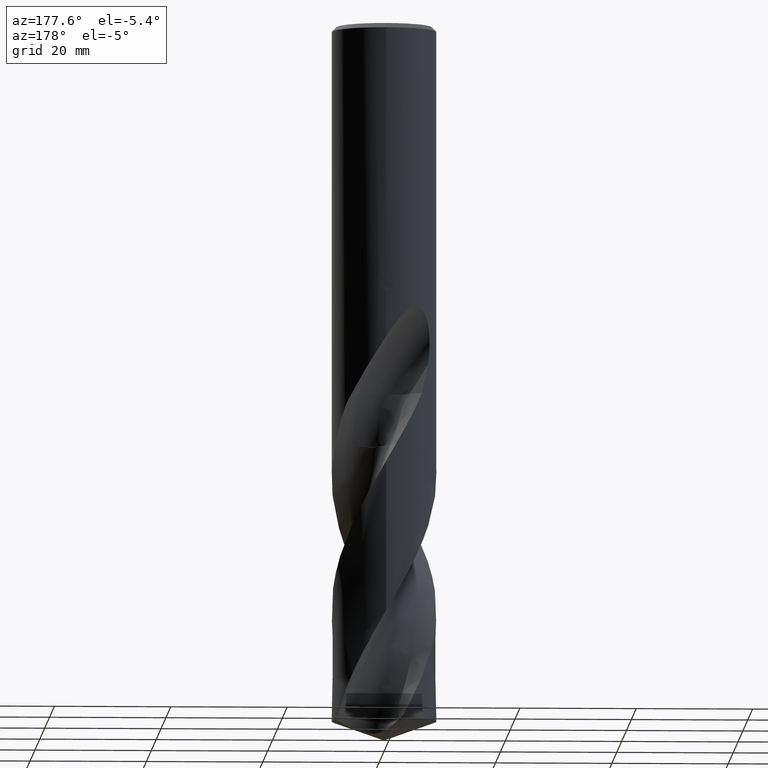
[diagram: clean part render]
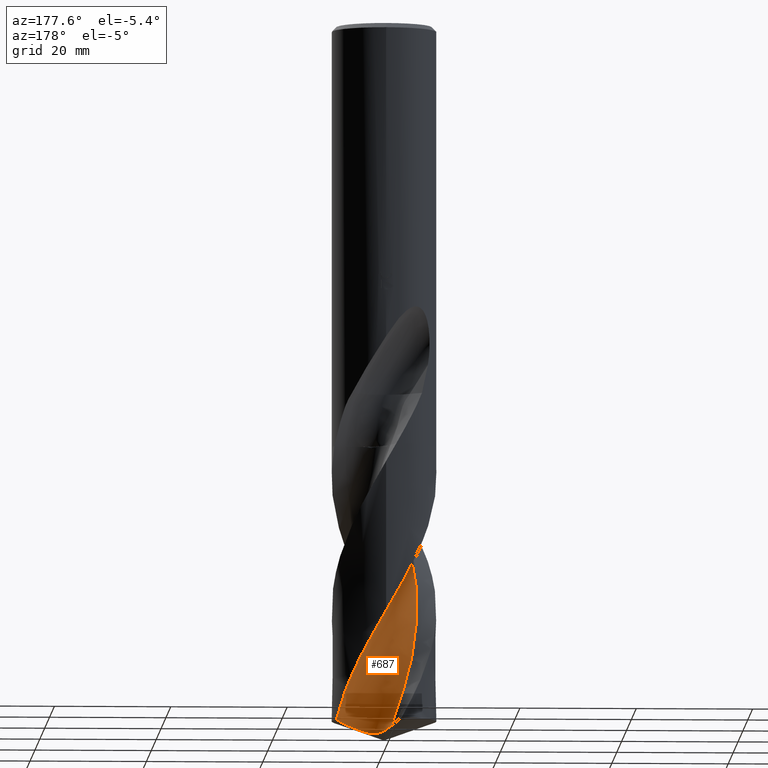
[diagram: same view with one face highlighted and labeled with its STEP entity id]
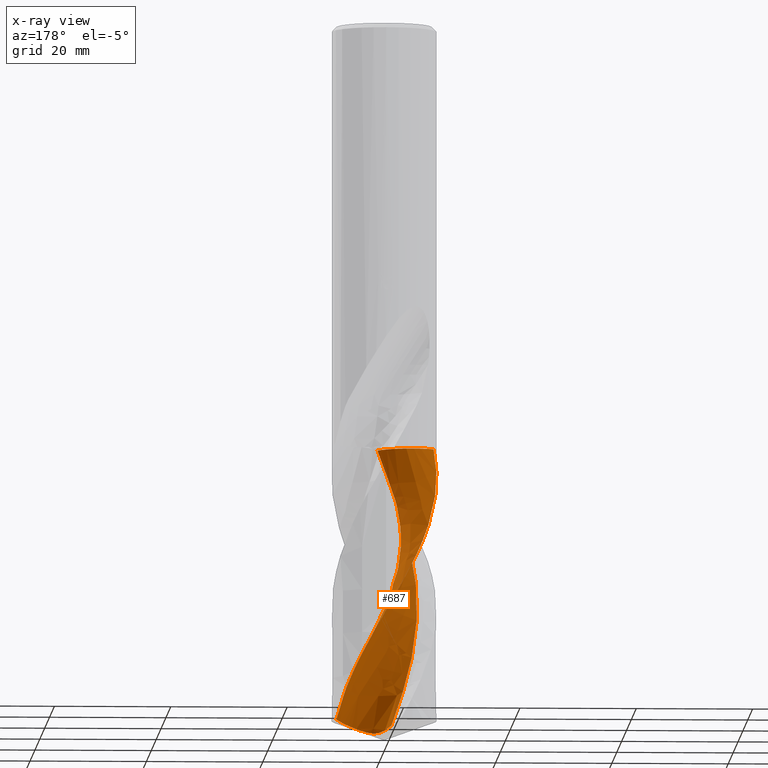
[diagram: x-ray of the same camera — body ghosted, the highlighted face saturated]
A machine part, auxiliary view. The second image highlights one B-rep face of the part: STEP entity #687.
The next image is the same camera in x-ray: the body ghosted, the highlighted face saturated — about 0% of this face is hidden behind the body in this view.
In plain terms, the highlighted face is a freeform B-spline surface patch.
Its self-contained STEP definition (entity closure, byte-faithful):
#309=EDGE_CURVE('',#471,#477,#787,.T.);
#351=VERTEX_POINT('',#833);
#367=VERTEX_POINT('',#850);
#373=EDGE_CURVE('',#351,#405,#856,.T.);
#405=VERTEX_POINT('',#893);
#413=VERTEX_POINT('',#901);
#471=VERTEX_POINT('',#964);
#477=VERTEX_POINT('',#971);
#515=EDGE_CURVE('',#413,#367,#1011,.T.);
#561=EDGE_CURVE('',#405,#413,#1061,.T.);
#619=EDGE_CURVE('',#367,#471,#1124,.T.);
#687=ADVANCED_FACE('',(#1199),#1200,.F.);
#689=EDGE_CURVE('',#477,#351,#1202,.T.);
#787=B_SPLINE_CURVE_WITH_KNOTS('',3,(#1431,#1432,#1433,#1434,#1435,#1436,#1437,#1438,#1439,#1440,#1441,#1442,#1443,#1444,#1445,#1446,#1447,#1448,#1449,#1450,#1451,#1452,#1453,#1454,#1455,#1456,#1457,#1458,#1459,#1460,#1461,#1462,#1463,#1464,#1465,#1466,#1467,#1468,#1469,#1470,#1471,#1472,#1473),.UNSPECIFIED.,.F.,.F.,(4,1,2,2,2,2,2,2,1,2,2,2,2,2,2,2,2,2,2,2,1,2,4),(0.0,1.1933961123314,2.3867922246628,3.5801883369942,4.7735844493256,7.1603766739884,9.54716889865119,11.933961123314,14.3207533479768,19.0943377973024,23.867922246628,28.6415066959536,33.4150911452792,38.1886755946048,42.9622600439304,47.735844493256,52.5094289425816,57.2830133919072,62.0565978412328,66.8301822905584,71.603766739884,73.9905589645468,76.3773511892095),.UNSPECIFIED.);
#833=CARTESIAN_POINT('',(-7.78281239902746E-015,3.81013589955994,-121.613223944051));
#850=CARTESIAN_POINT('',(-8.64142653074174,-2.51474605365439,-72.505));
#856=B_SPLINE_CURVE_WITH_KNOTS('',3,(#1920,#1921,#1922,#1923,#1924,#1925,#1926,#1927,#1928,#1929,#1930,#1931,#1932,#1933,#1934,#1935,#1936,#1937,#1938,#1939,#1940,#1941),.UNSPECIFIED.,.F.,.F.,(4,2,2,2,2,2,2,2,2,2,4),(0.0,3.40663572054394,4.90571790539407,6.13815144651703,8.08608936127086,10.4215841412702,13.1044018430695,16.1252288063536,19.4942910404532,21.4810572049664,23.467588545358),.UNSPECIFIED.);
#893=CARTESIAN_POINT('',(8.32250476081222,3.42577210366627,-119.724267891604));
#901=CARTESIAN_POINT('',(-1.29853358962347E-014,8.99996111550752,-101.36135100112));
#964=CARTESIAN_POINT('',(0.878027297289086,-5.58818423851552,-72.505));
#971=CARTESIAN_POINT('',(-1.05032382201522,5.57423766177261,-120.935441426501));
#1011=B_SPLINE_CURVE_WITH_KNOTS('',3,(#4970,#4971,#4972,#4973,#4974,#4975,#4976,#4977,#4978,#4979,#4980,#4981,#4982,#4983,#4984,#4985,#4986,#4987,#4988,#4989,#4990,#4991,#4992,#4993,#4994,#4995,#4996,#4997,#4998,#4999,#5000,#5001,#5002,#5003,#5004,#5005,#5006,#5007,#5008,#5009,#5010,#5011,#5012,#5013,#5014,#5015,#5016,#5017,#5018,#5019,#5020,#5021,#5022,#5023,#5024,#5025,#5026,#5027,#5028,#5029,#5030,#5031),.UNSPECIFIED.,.F.,.F.,(4,2,2,2,2,2,2,2,2,2,2,2,2,2,2,2,2,2,2,2,2,2,2,2,2,2,2,2,2,2,4),(0.0,2.53356226960985,3.78901420469953,5.73574751324788,7.88352003773002,8.68770342485946,9.73229587018579,11.8121840639859,15.4667526417185,16.6743231760193,18.5659667039319,21.906437017055,22.0556023164414,24.4340960081216,25.5512084935416,26.9069573839074,28.9338052900889,30.0182710071125,30.9937335319327,34.6005396449741,35.3435565061623,38.8216991774773,39.3125034811369,41.5869746362791,42.7139707860493,44.1922404981507,46.784272524436,48.7252854693923,51.6437122800019,53.100299016907,54.5582214193999),.UNSPECIFIED.);
#1061=B_SPLINE_CURVE_WITH_KNOTS('',3,(#5183,#5184,#5185,#5186,#5187,#5188,#5189,#5190,#5191,#5192,#5193,#5194,#5195,#5196,#5197,#5198,#5199,#5200,#5201,#5202,#5203,#5204,#5205,#5206,#5207,#5208,#5209,#5210,#5211,#5212,#5213,#5214,#5215,#5216,#5217,#5218,#5219,#5220,#5221,#5222,#5223,#5224,#5225,#5226,#5227,#5228,#5229,#5230,#5231,#5232,#5233,#5234,#5235,#5236,#5237,#5238,#5239,#5240,#5241,#5242,#5243,#5244),.UNSPECIFIED.,.F.,.F.,(4,2,2,2,2,2,2,2,2,2,2,2,2,2,2,2,2,2,2,2,2,2,2,2,2,2,2,2,2,2,4),(0.0,2.53356226960985,3.78901420469953,5.73574751324788,7.88352003773002,8.68770342485946,9.73229587018579,11.8121840639859,15.4667526417185,16.6743231760193,18.5659667039319,21.906437017055,22.0556023164414,24.4340960081216,25.5512084935416,26.9069573839074,28.9338052900889,30.0182710071125,30.9937335319327,34.6005396449741,35.3435565061623,38.8216991774773,39.3125034811369,41.5869746362791,42.7139707860493,44.1922404981507,46.784272524436,48.7252854693923,51.6437122800019,53.100299016907,54.5582214193999),.UNSPECIFIED.);
#1124=B_SPLINE_CURVE_WITH_KNOTS('',3,(#5740,#5741,#5742,#5743,#5744,#5745,#5746,#5747,#5748,#5749,#5750,#5751,#5752,#5753,#5754,#5755,#5756,#5757,#5758,#5759),.UNSPECIFIED.,.F.,.F.,(4,2,2,2,2,2,2,2,2,4),(-18.9007722621771,-17.6504117518353,-16.3997938230041,-14.0547446309547,-11.7099869271717,-9.36657026571753,-7.0247579280905,-4.68386455786257,-2.34264348805169,-0.0),.UNSPECIFIED.);
#1199=FACE_OUTER_BOUND('',#7165,.T.);
#1200=B_SPLINE_SURFACE_WITH_KNOTS('',3,3,((#7166,#7167,#7168,#7169,#7170,#7171,#7172,#7173,#7174,#7175,#7176,#7177,#7178,#7179,#7180,#7181,#7182,#7183,#7184,#7185,#7186,#7187,#7188,#7189,#7190,#7191,#7192,#7193,#7194,#7195,#7196,#7197,#7198,#7199,#7200,#7201,#7202,#7203,#7204,#7205,#7206,#7207,#7208),(#7209,#7210,#7211,#7212,#7213,#7214,#7215,#7216,#7217,#7218,#7219,#7220,#7221,#7222,#7223,#7224,#7225,#7226,#7227,#7228,#7229,#7230,#7231,#7232,#7233,#7234,#7235,#7236,#7237,#7238,#7239,#7240,#7241,#7242,#7243,#7244,#7245,#7246,#7247,#7248,#7249,#7250,#7251),(#7252,#7253,#7254,#7255,#7256,#7257,#7258,#7259,#7260,#7261,#7262,#7263,#7264,#7265,#7266,#7267,#7268,#7269,#7270,#7271,#7272,#7273,#7274,#7275,#7276,#7277,#7278,#7279,#7280,#7281,#7282,#7283,#7284,#7285,#7286,#7287,#7288,#7289,#7290,#7291,#7292,#7293,#7294),(#7295,#7296,#7297,#7298,#7299,#7300,#7301,#7302,#7303,#7304,#7305,#7306,#7307,#7308,#7309,#7310,#7311,#7312,#7313,#7314,#7315,#7316,#7317,#7318,#7319,#7320,#7321,#7322,#7323,#7324,#7325,#7326,#7327,#7328,#7329,#7330,#7331,#7332,#7333,#7334,#7335,#7336,#7337),(#7338,#7339,#7340,#7341,#7342,#7343,#7344,#7345,#7346,#7347,#7348,#7349,#7350,#7351,#7352,#7353,#7354,#7355,#7356,#7357,#7358,#7359,#7360,#7361,#7362,#7363,#7364,#7365,#7366,#7367,#7368,#7369,#7370,#7371,#7372,#7373,#7374,#7375,#7376,#7377,#7378,#7379,#7380),(#7381,#7382,#7383,#7384,#7385,#7386,#7387,#7388,#7389,#7390,#7391,#7392,#7393,#7394,#7395,#7396,#7397,#7398,#7399,#7400,#7401,#7402,#7403,#7404,#7405,#7406,#7407,#7408,#7409,#7410,#7411,#7412,#7413,#7414,#7415,#7416,#7417,#7418,#7419,#7420,#7421,#7422,#7423),(#7424,#7425,#7426,#7427,#7428,#7429,#7430,#7431,#7432,#7433,#7434,#7435,#7436,#7437,#7438,#7439,#7440,#7441,#7442,#7443,#7444,#7445,#7446,#7447,#7448,#7449,#7450,#7451,#7452,#7453,#7454,#7455,#7456,#7457,#7458,#7459,#7460,#7461,#7462,#7463,#7464,#7465,#7466),(#7467,#7468,#7469,#7470,#7471,#7472,#7473,#7474,#7475,#7476,#7477,#7478,#7479,#7480,#7481,#7482,#7483,#7484,#7485,#7486,#7487,#7488,#7489,#7490,#7491,#7492,#7493,#7494,#7495,#7496,#7497,#7498,#7499,#7500,#7501,#7502,#7503,#7504,#7505,#7506,#7507,#7508,#7509),(#7510,#7511,#7512,#7513,#7514,#7515,#7516,#7517,#7518,#7519,#7520,#7521,#7522,#7523,#7524,#7525,#7526,#7527,#7528,#7529,#7530,#7531,#7532,#7533,#7534,#7535,#7536,#7537,#7538,#7539,#7540,#7541,#7542,#7543,#7544,#7545,#7546,#7547,#7548,#7549,#7550,#7551,#7552),(#7553,#7554,#7555,#7556,#7557,#7558,#7559,#7560,#7561,#7562,#7563,#7564,#7565,#7566,#7567,#7568,#7569,#7570,#7571,#7572,#7573,#7574,#7575,#7576,#7577,#7578,#7579,#7580,#7581,#7582,#7583,#7584,#7585,#7586,#7587,#7588,#7589,#7590,#7591,#7592,#7593,#7594,#7595),(#7596,#7597,#7598,#7599,#7600,#7601,#7602,#7603,#7604,#7605,#7606,#7607,#7608,#7609,#7610,#7611,#7612,#7613,#7614,#7615,#7616,#7617,#7618,#7619,#7620,#7621,#7622,#7623,#7624,#7625,#7626,#7627,#7628,#7629,#7630,#7631,#7632,#7633,#7634,#7635,#7636,#7637,#7638),(#7639,#7640,#7641,#7642,#7643,#7644,#7645,#7646,#7647,#7648,#7649,#7650,#7651,#7652,#7653,#7654,#7655,#7656,#7657,#7658,#7659,#7660,#7661,#7662,#7663,#7664,#7665,#7666,#7667,#7668,#7669,#7670,#7671,#7672,#7673,#7674,#7675,#7676,#7677,#7678,#7679,#7680,#7681),(#7682,#7683,#7684,#7685,#7686,#7687,#7688,#7689,#7690,#7691,#7692,#7693,#7694,#7695,#7696,#7697,#7698,#7699,#7700,#7701,#7702,#7703,#7704,#7705,#7706,#7707,#7708,#7709,#7710,#7711,#7712,#7713,#7714,#7715,#7716,#7717,#7718,#7719,#7720,#7721,#7722,#7723,#7724),(#7725,#7726,#7727,#7728,#7729,#7730,#7731,#7732,#7733,#7734,#7735,#7736,#7737,#7738,#7739,#7740,#7741,#7742,#7743,#7744,#7745,#7746,#7747,#7748,#7749,#7750,#7751,#7752,#7753,#7754,#7755,#7756,#7757,#7758,#7759,#7760,#7761,#7762,#7763,#7764,#7765,#7766,#7767)),.UNSPECIFIED.,.F.,.F.,.F.,(4,1,1,1,1,1,1,1,1,1,1,4),(4,1,2,2,2,2,2,2,1,2,2,2,2,2,2,2,2,2,2,2,1,2,4),(8.06827116691296E-017,0.294525393809048,0.589050787618095,0.883576181427143,1.17810157523619,1.47262696904524,1.76715236285429,2.06167775666333,2.35620315047238,2.65072854428143,2.94525393809048,3.14160420062984),(0.0,1.1933961123314,2.3867922246628,3.5801883369942,4.7735844493256,7.1603766739884,9.54716889865119,11.933961123314,14.3207533479768,19.0943377973024,23.867922246628,28.6415066959536,33.4150911452792,38.1886755946048,42.9622600439304,47.735844493256,52.5094289425816,57.2830133919072,62.0565978412328,66.8301822905584,71.603766739884,73.9905589645468,76.3773511892095),.UNSPECIFIED.);
#1202=B_SPLINE_CURVE_WITH_KNOTS('',3,(#7770,#7771,#7772,#7773,#7774,#7775,#7776,#7777,#7778,#7779,#7780,#7781,#7782,#7783,#7784,#7785,#7786,#7787,#7788,#7789,#7790,#7791),.UNSPECIFIED.,.F.,.F.,(4,2,2,2,2,2,2,2,2,2,4),(0.0,3.40663572054394,4.90571790539407,6.13815144651703,8.08608936127086,10.4215841412702,13.1044018430695,16.1252288063536,19.4942910404532,21.4810572049664,23.467588545358),.UNSPECIFIED.);
#1431=CARTESIAN_POINT('',(4.24264068704858,-4.45735931295143,-63.613));
#1432=CARTESIAN_POINT('',(3.99311787652108,-4.44347410491688,-63.9219619584926));
#1433=CARTESIAN_POINT('',(3.55458274694981,-4.44700793969421,-64.5391290349478));
#1434=CARTESIAN_POINT('',(3.23806163581809,-4.50651466131631,-65.154765391796));
#1435=CARTESIAN_POINT('',(2.98143905017616,-4.59524694775527,-65.7705704837012));
#1436=CARTESIAN_POINT('',(2.88737007013949,-4.65667852537409,-66.0786457896518));
#1437=CARTESIAN_POINT('',(2.75938075732102,-4.8181069006619,-66.6982629351832));
#1438=CARTESIAN_POINT('',(2.69363150798601,-4.89734565589351,-67.0086589231243));
#1439=CARTESIAN_POINT('',(2.49054948242743,-5.13023924277972,-67.9417087531935));
#1440=CARTESIAN_POINT('',(2.3035510144979,-5.24445181323203,-68.5634834671713));
#1441=CARTESIAN_POINT('',(1.86292228561873,-5.38702243073939,-69.7995522331671));
#1442=CARTESIAN_POINT('',(1.63723171172736,-5.4440688885222,-70.4172230406543));
#1443=CARTESIAN_POINT('',(1.18287571729197,-5.53375986124702,-71.6516750673065));
#1444=CARTESIAN_POINT('',(0.960586153309364,-5.57458645499557,-72.2696944917665));
#1445=CARTESIAN_POINT('',(0.523033237646182,-5.64883997041063,-73.5089224154209));
#1446=CARTESIAN_POINT('',(-0.150106992042556,-5.70430299131568,-75.3665150419422));
#1447=CARTESIAN_POINT('',(-0.830404253417298,-5.6221810611302,-77.2210651685434));
#1448=CARTESIAN_POINT('',(-1.70769714951101,-5.42677526196296,-79.6960916988998));
#1449=CARTESIAN_POINT('',(-2.13542691827944,-5.26610838387602,-80.9335145543304));
#1450=CARTESIAN_POINT('',(-2.94179955608336,-4.86971555112628,-83.4082525392972));
#1451=CARTESIAN_POINT('',(-3.31950136478463,-4.61277439321711,-84.645644993992));
#1452=CARTESIAN_POINT('',(-4.00920560064337,-4.03656940293721,-87.120439524931));
#1453=CARTESIAN_POINT('',(-4.31542911530637,-3.69752698084002,-88.35783124431));
#1454=CARTESIAN_POINT('',(-4.849482576518,-2.97472540820818,-90.8326091736827));
#1455=CARTESIAN_POINT('',(-5.06693668263404,-2.57294940819372,-92.0700003025889));
#1456=CARTESIAN_POINT('',(-5.41506348344108,-1.74441905619538,-94.5447872540186));
#1457=CARTESIAN_POINT('',(-5.53144056837301,-1.30265994584928,-95.7821774599568));
#1458=CARTESIAN_POINT('',(-5.6740523197749,-0.415418885514051,-98.2569620063488));
#1459=CARTESIAN_POINT('',(-5.68276071331416,0.0413231635224889,-99.4943521170809));
#1460=CARTESIAN_POINT('',(-5.61161099227613,0.937149619326124,-101.96913067123));
#1461=CARTESIAN_POINT('',(-5.5120759412614,1.38302894588859,-103.206530461748));
#1462=CARTESIAN_POINT('',(-5.2310416167569,2.23669047320509,-105.681316839958));
#1463=CARTESIAN_POINT('',(-5.02899114824391,2.64640940914849,-106.918688203885));
#1464=CARTESIAN_POINT('',(-4.55445658107632,3.40951945467019,-109.393456861109));
#1465=CARTESIAN_POINT('',(-4.26117628635966,3.75988086982488,-110.630896683393));
#1466=CARTESIAN_POINT('',(-3.61908306422379,4.38899552147486,-113.10573585417));
#1467=CARTESIAN_POINT('',(-3.25182423710655,4.66031103713013,-114.343018455461));
#1468=CARTESIAN_POINT('',(-2.48148873055855,5.12139757130905,-116.817723025079));
#1469=CARTESIAN_POINT('',(-1.84729905485873,5.38435014340555,-118.674444741216));
#1470=CARTESIAN_POINT('',(-1.19366967072811,5.5453923475751,-120.528825920672));
#1471=CARTESIAN_POINT('',(-0.757846063289569,5.63421744533165,-121.765131385021));
#1472=CARTESIAN_POINT('',(-0.527274246689077,5.65028601986844,-122.383901123818));
#1473=CARTESIAN_POINT('',(-0.290370401118719,5.63942531405816,-123.002041868115));
#1920=CARTESIAN_POINT('',(-1.05032382201521,5.5742376617726,-120.935441426501));
#1921=CARTESIAN_POINT('',(-0.607679055004795,4.59942178002437,-121.313941888097));
#1922=CARTESIAN_POINT('',(-0.0291902992551815,3.78658867740835,-121.642135980013));
#1923=CARTESIAN_POINT('',(0.771152276655715,2.90226277840192,-121.911961157326));
#1924=CARTESIAN_POINT('',(1.03999067927812,2.63844826573343,-121.97656415674));
#1925=CARTESIAN_POINT('',(1.56685621824733,2.20086566587878,-122.0229137653));
#1926=CARTESIAN_POINT('',(1.81279340449546,2.02342818881343,-122.016974713187));
#1927=CARTESIAN_POINT('',(2.49508312705714,1.61945970800709,-121.930560245119));
#1928=CARTESIAN_POINT('',(2.93325681402434,1.44247696271449,-121.814095259739));
#1929=CARTESIAN_POINT('',(3.93452603700309,1.21949124547906,-121.505101457147));
#1930=CARTESIAN_POINT('',(4.49290794671311,1.20899704835207,-121.306636590183));
#1931=CARTESIAN_POINT('',(5.66096028987638,1.40280666973503,-120.877356253802));
#1932=CARTESIAN_POINT('',(6.25663003184805,1.63725727029239,-120.646959443585));
#1933=CARTESIAN_POINT('',(7.40260405313286,2.35895231458258,-120.173092207097));
#1934=CARTESIAN_POINT('',(7.92713167315813,2.86723477151279,-119.935070990732));
#1935=CARTESIAN_POINT('',(8.81690498549722,4.12358056453355,-119.460776948813));
#1936=CARTESIAN_POINT('',(9.14980850477063,4.88204187743036,-119.231427815744));
#1937=CARTESIAN_POINT('',(9.44678467017094,6.15866603036524,-118.897450504161));
#1938=CARTESIAN_POINT('',(9.50557373021906,6.6451735594498,-118.781017326778));
#1939=CARTESIAN_POINT('',(9.52060141261639,7.62466865282182,-118.562734846113));
#1940=CARTESIAN_POINT('',(9.47683310280194,8.11609273770625,-118.46123500101));
#1941=CARTESIAN_POINT('',(9.38292793771218,8.60003856477982,-118.367415225606));
#4970=CARTESIAN_POINT('',(8.32250476081224,3.42577210366627,-119.724267891604));
#4971=CARTESIAN_POINT('',(8.16176315609466,3.81627059328311,-118.992907259398));
#4972=CARTESIAN_POINT('',(7.9734894331994,4.19556711586454,-118.264540476028));
#4973=CARTESIAN_POINT('',(7.65252014653159,4.74161183684306,-117.171771990478));
#4974=CARTESIAN_POINT('',(7.53994259550827,4.91864670273495,-116.809958467722));
#4975=CARTESIAN_POINT('',(7.23750547783702,5.35947729429919,-115.886036553932));
#4976=CARTESIAN_POINT('',(7.03946526684127,5.61704179118466,-115.322953373382));
#4977=CARTESIAN_POINT('',(6.59461366957446,6.13507523084241,-114.141696690008));
#4978=CARTESIAN_POINT('',(6.34517235762831,6.3927329908121,-113.523703520935));
#4979=CARTESIAN_POINT('',(5.98197652052267,6.72560041424402,-112.672335824692));
#4980=CARTESIAN_POINT('',(5.88106668809036,6.81401157200649,-112.440451932282));
#4981=CARTESIAN_POINT('',(5.64474746287942,7.01190841639607,-111.907071760979));
#4982=CARTESIAN_POINT('',(5.50797909435678,7.11984804481317,-111.605269971654));
#4983=CARTESIAN_POINT('',(5.08952686306658,7.43080149063299,-110.703569427999));
#4984=CARTESIAN_POINT('',(4.79910971081116,7.62160396920245,-110.104813564462));
#4985=CARTESIAN_POINT('',(3.9695726635372,8.10028469668248,-108.450515733775));
#4986=CARTESIAN_POINT('',(3.41134020215715,8.35073822720649,-107.39540884584));
#4987=CARTESIAN_POINT('',(2.64054744576727,8.60625706801341,-105.992932124867));
#4988=CARTESIAN_POINT('',(2.4470897364704,8.6632465647354,-105.644862327678));
#4989=CARTESIAN_POINT('',(1.94624704316803,8.79268120569752,-104.750723367795));
#4990=CARTESIAN_POINT('',(1.63677388280803,8.85550696857668,-104.203975515491));
#4991=CARTESIAN_POINT('',(0.773268966431278,8.98399003096975,-102.694519097094));
#4992=CARTESIAN_POINT('',(0.215928384099625,9.01456568900529,-101.736525213475));
#4993=CARTESIAN_POINT('',(-0.365018221883866,8.99258890618818,-100.729380049128));
#4994=CARTESIAN_POINT('',(-0.38984513867323,8.9915468387813,-100.686325822476));
#4995=CARTESIAN_POINT('',(-0.811140619205548,8.97211186723868,-99.9558227267251));
#4996=CARTESIAN_POINT('',(-1.20631640688483,8.92760679485736,-99.2706757810518));
#4997=CARTESIAN_POINT('',(-1.7814789605454,8.82385400410558,-98.2612255475533));
#4998=CARTESIAN_POINT('',(-1.96411779428389,8.78499999973398,-97.9388069025751));
#4999=CARTESIAN_POINT('',(-2.36524035120878,8.68654460214721,-97.224460931015));
#5000=CARTESIAN_POINT('',(-2.58290541483799,8.62432465436719,-96.8322326955946));
#5001=CARTESIAN_POINT('',(-3.11973687899221,8.44872028534595,-95.8551397345737));
#5002=CARTESIAN_POINT('',(-3.43537782944092,8.3253849603316,-95.2710564247707));
#5003=CARTESIAN_POINT('',(-3.90833252071229,8.10905863120638,-94.3726964720353));
#5004=CARTESIAN_POINT('',(-4.07076771456513,8.02873920369943,-94.0597184448976));
#5005=CARTESIAN_POINT('',(-4.37431552414183,7.8670760320754,-93.4646934147694));
#5006=CARTESIAN_POINT('',(-4.51585734152494,7.78668901419198,-93.1826262829411));
#5007=CARTESIAN_POINT('',(-5.17037832221745,7.39110923766195,-91.8591451729476));
#5008=CARTESIAN_POINT('',(-5.65285065315223,7.02895066919044,-90.8248475494554));
#5009=CARTESIAN_POINT('',(-6.18667491520602,6.53752745566373,-89.5685394499079));
#5010=CARTESIAN_POINT('',(-6.27612190313171,6.45170861861479,-89.3537787749003));
#5011=CARTESIAN_POINT('',(-6.77476388838732,5.95306632988123,-88.1335768932747));
#5012=CARTESIAN_POINT('',(-7.14475803721784,5.50349908635338,-87.1348673848176));
#5013=CARTESIAN_POINT('',(-7.5145328602705,4.95350650065715,-85.987615975794));
#5014=CARTESIAN_POINT('',(-7.55929470181297,4.8849237604971,-85.8457025099191));
#5015=CARTESIAN_POINT('',(-7.80620692188992,4.49509359521068,-85.0466841053794));
#5016=CARTESIAN_POINT('',(-7.98898318147894,4.16165518813081,-84.3914427695189));
#5017=CARTESIAN_POINT('',(-8.23016586247569,3.64670824274058,-83.4092712186062));
#5018=CARTESIAN_POINT('',(-8.30465667615563,3.47371570385364,-83.0840319224438));
#5019=CARTESIAN_POINT('',(-8.46411285931607,3.06892639806171,-82.3314971561108));
#5020=CARTESIAN_POINT('',(-8.54507167795108,2.83571357021161,-81.9037710599888));
#5021=CARTESIAN_POINT('',(-8.74141827148578,2.18484563831829,-80.7279981946973));
#5022=CARTESIAN_POINT('',(-8.836404506873,1.76182010333715,-79.9821103191824));
#5023=CARTESIAN_POINT('',(-8.94862630064974,1.01277039808801,-78.6729581452542));
#5024=CARTESIAN_POINT('',(-8.97929026908815,0.689828480817827,-78.1114535312485));
#5025=CARTESIAN_POINT('',(-9.01228549805852,-0.121144775461839,-76.7080309080443));
#5026=CARTESIAN_POINT('',(-8.99250544766332,-0.60906334454836,-75.8682640093403));
#5027=CARTESIAN_POINT('',(-8.90371820991169,-1.33465893469245,-74.6053244446701));
#5028=CARTESIAN_POINT('',(-8.86440430502716,-1.57463558916387,-74.185194749675));
#5029=CARTESIAN_POINT('',(-8.76663485544657,-2.05020246949987,-73.3431682378911));
#5030=CARTESIAN_POINT('',(-8.70861350687514,-2.2838983827046,-72.9228608109019));
#5031=CARTESIAN_POINT('',(-8.64135673291403,-2.51498588436446,-72.5045658796388));
#5183=CARTESIAN_POINT('',(8.32250476081224,3.42577210366627,-119.724267891604));
#5184=CARTESIAN_POINT('',(8.16176315609466,3.81627059328311,-118.992907259398));
#5185=CARTESIAN_POINT('',(7.9734894331994,4.19556711586454,-118.264540476028));
#5186=CARTESIAN_POINT('',(7.65252014653159,4.74161183684306,-117.171771990478));
#5187=CARTESIAN_POINT('',(7.53994259550827,4.91864670273495,-116.809958467722));
#5188=CARTESIAN_POINT('',(7.23750547783702,5.35947729429919,-115.886036553932));
#5189=CARTESIAN_POINT('',(7.03946526684127,5.61704179118466,-115.322953373382));
#5190=CARTESIAN_POINT('',(6.59461366957446,6.13507523084241,-114.141696690008));
#5191=CARTESIAN_POINT('',(6.34517235762831,6.3927329908121,-113.523703520935));
#5192=CARTESIAN_POINT('',(5.98197652052267,6.72560041424402,-112.672335824692));
#5193=CARTESIAN_POINT('',(5.88106668809036,6.81401157200649,-112.440451932282));
#5194=CARTESIAN_POINT('',(5.64474746287942,7.01190841639607,-111.907071760979));
#5195=CARTESIAN_POINT('',(5.50797909435678,7.11984804481317,-111.605269971654));
#5196=CARTESIAN_POINT('',(5.08952686306658,7.43080149063299,-110.703569427999));
#5197=CARTESIAN_POINT('',(4.79910971081116,7.62160396920245,-110.104813564462));
#5198=CARTESIAN_POINT('',(3.9695726635372,8.10028469668248,-108.450515733775));
#5199=CARTESIAN_POINT('',(3.41134020215715,8.35073822720649,-107.39540884584));
#5200=CARTESIAN_POINT('',(2.64054744576727,8.60625706801341,-105.992932124867));
#5201=CARTESIAN_POINT('',(2.4470897364704,8.6632465647354,-105.644862327678));
#5202=CARTESIAN_POINT('',(1.94624704316803,8.79268120569752,-104.750723367795));
#5203=CARTESIAN_POINT('',(1.63677388280803,8.85550696857668,-104.203975515491));
#5204=CARTESIAN_POINT('',(0.773268966431278,8.98399003096975,-102.694519097094));
#5205=CARTESIAN_POINT('',(0.215928384099625,9.01456568900529,-101.736525213475));
#5206=CARTESIAN_POINT('',(-0.365018221883866,8.99258890618818,-100.729380049128));
#5207=CARTESIAN_POINT('',(-0.38984513867323,8.9915468387813,-100.686325822476));
#5208=CARTESIAN_POINT('',(-0.811140619205548,8.97211186723868,-99.9558227267251));
#5209=CARTESIAN_POINT('',(-1.20631640688483,8.92760679485736,-99.2706757810518));
#5210=CARTESIAN_POINT('',(-1.7814789605454,8.82385400410558,-98.2612255475533));
#5211=CARTESIAN_POINT('',(-1.96411779428389,8.78499999973398,-97.9388069025751));
#5212=CARTESIAN_POINT('',(-2.36524035120878,8.68654460214721,-97.224460931015));
#5213=CARTESIAN_POINT('',(-2.58290541483799,8.62432465436719,-96.8322326955946));
#5214=CARTESIAN_POINT('',(-3.11973687899221,8.44872028534595,-95.8551397345737));
#5215=CARTESIAN_POINT('',(-3.43537782944092,8.3253849603316,-95.2710564247707));
#5216=CARTESIAN_POINT('',(-3.90833252071229,8.10905863120638,-94.3726964720353));
#5217=CARTESIAN_POINT('',(-4.07076771456513,8.02873920369943,-94.0597184448976));
#5218=CARTESIAN_POINT('',(-4.37431552414183,7.8670760320754,-93.4646934147694));
#5219=CARTESIAN_POINT('',(-4.51585734152494,7.78668901419198,-93.1826262829411));
#5220=CARTESIAN_POINT('',(-5.17037832221745,7.39110923766195,-91.8591451729476));
#5221=CARTESIAN_POINT('',(-5.65285065315223,7.02895066919044,-90.8248475494554));
#5222=CARTESIAN_POINT('',(-6.18667491520602,6.53752745566373,-89.5685394499079));
#5223=CARTESIAN_POINT('',(-6.27612190313171,6.45170861861479,-89.3537787749003));
#5224=CARTESIAN_POINT('',(-6.77476388838732,5.95306632988123,-88.1335768932747));
#5225=CARTESIAN_POINT('',(-7.14475803721784,5.50349908635338,-87.1348673848176));
#5226=CARTESIAN_POINT('',(-7.5145328602705,4.95350650065715,-85.987615975794));
#5227=CARTESIAN_POINT('',(-7.55929470181297,4.8849237604971,-85.8457025099191));
#5228=CARTESIAN_POINT('',(-7.80620692188992,4.49509359521068,-85.0466841053794));
#5229=CARTESIAN_POINT('',(-7.98898318147894,4.16165518813081,-84.3914427695189));
#5230=CARTESIAN_POINT('',(-8.23016586247569,3.64670824274058,-83.4092712186062));
#5231=CARTESIAN_POINT('',(-8.30465667615563,3.47371570385364,-83.0840319224438));
#5232=CARTESIAN_POINT('',(-8.46411285931607,3.06892639806171,-82.3314971561108));
#5233=CARTESIAN_POINT('',(-8.54507167795108,2.83571357021161,-81.9037710599888));
#5234=CARTESIAN_POINT('',(-8.74141827148578,2.18484563831829,-80.7279981946973));
#5235=CARTESIAN_POINT('',(-8.836404506873,1.76182010333715,-79.9821103191824));
#5236=CARTESIAN_POINT('',(-8.94862630064974,1.01277039808801,-78.6729581452542));
#5237=CARTESIAN_POINT('',(-8.97929026908815,0.689828480817827,-78.1114535312485));
#5238=CARTESIAN_POINT('',(-9.01228549805852,-0.121144775461839,-76.7080309080443));
#5239=CARTESIAN_POINT('',(-8.99250544766332,-0.60906334454836,-75.8682640093403));
#5240=CARTESIAN_POINT('',(-8.90371820991169,-1.33465893469245,-74.6053244446701));
#5241=CARTESIAN_POINT('',(-8.86440430502716,-1.57463558916387,-74.185194749675));
#5242=CARTESIAN_POINT('',(-8.76663485544657,-2.05020246949987,-73.3431682378911));
#5243=CARTESIAN_POINT('',(-8.70861350687514,-2.2838983827046,-72.9228608109019));
#5244=CARTESIAN_POINT('',(-8.64135673291403,-2.51498588436446,-72.5045658796388));
#5740=CARTESIAN_POINT('',(-10.6760915354392,-8.81618085284211,-72.505));
#5741=CARTESIAN_POINT('',(-10.7881019458806,-8.41472401439001,-72.505));
#5742=CARTESIAN_POINT('',(-10.8579573570849,-8.00268205922151,-72.5050000000001));
#5743=CARTESIAN_POINT('',(-10.9111325570892,-7.17071242379944,-72.5050000000001));
#5744=CARTESIAN_POINT('',(-10.8942902189865,-6.75304228886987,-72.5049999999999));
#5745=CARTESIAN_POINT('',(-10.7218229025703,-5.56694709330736,-72.5049999999999));
#5746=CARTESIAN_POINT('',(-10.4592909322859,-4.82274045183047,-72.5049999999998));
#5747=CARTESIAN_POINT('',(-9.66385526713666,-3.47694368799934,-72.5049999999998));
#5748=CARTESIAN_POINT('',(-9.1385594275998,-2.8881507058111,-72.505));
#5749=CARTESIAN_POINT('',(-7.89225429554024,-1.94533876535098,-72.505));
#5750=CARTESIAN_POINT('',(-7.18322673222017,-1.60016567320536,-72.5049999999999));
#5751=CARTESIAN_POINT('',(-5.67330509322563,-1.2011736297162,-72.5049999999999));
#5752=CARTESIAN_POINT('',(-4.88689173212582,-1.15096703541774,-72.505));
#5753=CARTESIAN_POINT('',(-3.33936758704843,-1.35480807708291,-72.505));
#5754=CARTESIAN_POINT('',(-2.5930721787107,-1.6067855507053,-72.505));
#5755=CARTESIAN_POINT('',(-1.23894396058437,-2.38272270043916,-72.505));
#5756=CARTESIAN_POINT('',(-0.644131516354549,-2.8992712329301,-72.505));
#5757=CARTESIAN_POINT('',(0.314333111892514,-4.1317167371205,-72.505));
#5758=CARTESIAN_POINT('',(0.668642294486585,-4.83589884663559,-72.505));
#5759=CARTESIAN_POINT('',(0.878027297289112,-5.58818423851552,-72.505));
#7165=EDGE_LOOP('',(#8563,#8564,#8565,#8566,#8567,#8568));
#7166=CARTESIAN_POINT('',(-4.24264068704858,-12.9426406870486,-63.613));
#7167=CARTESIAN_POINT('',(-4.4928452380418,-12.9280737385483,-63.921946279534));
#7168=CARTESIAN_POINT('',(-4.99657300178194,-12.8671235550177,-64.5421972148052));
#7169=CARTESIAN_POINT('',(-5.50222390158195,-12.7308966902584,-65.1651442803524));
#7170=CARTESIAN_POINT('',(-6.0042947652283,-12.5507134634659,-65.7873753568358));
#7171=CARTESIAN_POINT('',(-6.25363802618862,-12.4363568037886,-66.0980342280936));
#7172=CARTESIAN_POINT('',(-6.74183125418681,-12.1535296618322,-66.7156167740124));
#7173=CARTESIAN_POINT('',(-6.98098025034184,-12.0026767149087,-67.0238207664501));
#7174=CARTESIAN_POINT('',(-7.68178817573643,-11.5223974582593,-67.9463144710058));
#7175=CARTESIAN_POINT('',(-8.12959148748512,-11.19100874339,-68.5615485506138));
#7176=CARTESIAN_POINT('',(-8.99518488013602,-10.516687166385,-69.8004023280455));
#7177=CARTESIAN_POINT('',(-9.40860885012381,-10.1557191941388,-70.4202490069791));
#7178=CARTESIAN_POINT('',(-10.1902745965243,-9.38882989071266,-71.6609290857544));
#7179=CARTESIAN_POINT('',(-10.5568848946424,-8.97839465732062,-72.2803789766222));
#7180=CARTESIAN_POINT('',(-11.2327865642408,-8.10622852882685,-73.5157173895921));
#7181=CARTESIAN_POINT('',(-12.1715793097054,-6.74278994403438,-75.3701236850407));
#7182=CARTESIAN_POINT('',(-12.8623091738317,-5.23235550883466,-77.2279277896891));
#7183=CARTESIAN_POINT('',(-13.5251700997046,-3.13201505991302,-79.7024386697705));
#7184=CARTESIAN_POINT('',(-13.734720177163,-2.04489149790421,-80.9397950812958));
#7185=CARTESIAN_POINT('',(-13.8822142779931,0.152938252090463,-83.4146282875289));
#7186=CARTESIAN_POINT('',(-13.8287378368665,1.25878055524639,-84.6520186828264));
#7187=CARTESIAN_POINT('',(-13.4528529150133,3.42912674139958,-87.1267887581774));
#7188=CARTESIAN_POINT('',(-13.1396528437479,4.49102469636116,-88.3641800102073));
#7189=CARTESIAN_POINT('',(-12.2615298704737,6.51109254330432,-90.8389685023219));
#7190=CARTESIAN_POINT('',(-11.7062561670558,7.46889994972204,-92.0763602458008));
#7191=CARTESIAN_POINT('',(-10.3756516879776,9.22425228378782,-94.5511391794961));
#7192=CARTESIAN_POINT('',(-9.60975206358078,10.0237202491406,-95.7885326460222));
#7193=CARTESIAN_POINT('',(-7.90194451392787,11.4148767081622,-98.263312240334));
#7194=CARTESIAN_POINT('',(-6.96879129987387,12.0106832639587,-99.5007030955547));
#7195=CARTESIAN_POINT('',(-4.9806087904749,12.9588456873897,-101.975496447379));
#7196=CARTESIAN_POINT('',(-3.93310787959444,13.3172675361619,-103.212886266311));
#7197=CARTESIAN_POINT('',(-1.77723685109305,13.7688328700448,-105.687650280565));
#7198=CARTESIAN_POINT('',(-0.674699275936027,13.8695851026648,-106.925041487884));
#7199=CARTESIAN_POINT('',(1.5268700302288,13.7987870253652,-109.399870586265));
#7200=CARTESIAN_POINT('',(2.62196301182535,13.6361668766845,-110.637260957763));
#7201=CARTESIAN_POINT('',(4.74443491002099,13.0475222682891,-113.111948706364));
#7202=CARTESIAN_POINT('',(5.77018953118615,12.6305917145941,-114.349376532492));
#7203=CARTESIAN_POINT('',(7.69318016048132,11.5555330602889,-116.824394206313));
#7204=CARTESIAN_POINT('',(9.04027012298888,10.5853230217464,-118.68012110858));
#7205=CARTESIAN_POINT('',(10.1842310958104,9.3898297618564,-120.535146651887));
#7206=CARTESIAN_POINT('',(10.8937467715482,8.54568491812608,-121.771986455753));
#7207=CARTESIAN_POINT('',(11.2263205432539,8.10970068117618,-122.389823665142));
#7208=CARTESIAN_POINT('',(11.5378272385616,7.66271505150588,-123.008305269768));
#7209=CARTESIAN_POINT('',(-4.65914407156149,-12.5261004599468,-63.6130000000004));
#7210=CARTESIAN_POINT('',(-4.90931515319702,-12.5115000455575,-63.9219454158314));
#7211=CARTESIAN_POINT('',(-5.40987746942291,-12.4473498973965,-64.5423659796003));
#7212=CARTESIAN_POINT('',(-5.90591946448643,-12.3018392243885,-65.1657151670084));
#7213=CARTESIAN_POINT('',(-6.394788714785,-12.1096076670673,-65.7882997026637));
#7214=CARTESIAN_POINT('',(-6.63550221371541,-11.9876291145183,-66.099100678979));
#7215=CARTESIAN_POINT('',(-7.10188748255786,-11.6871216603585,-66.7165713181284));
#7216=CARTESIAN_POINT('',(-7.32974177652788,-11.5277576566835,-67.0246547384367));
#7217=CARTESIAN_POINT('',(-7.99554167645321,-11.0230483843129,-67.9465678056557));
#7218=CARTESIAN_POINT('',(-8.42147081694825,-10.6788582823807,-68.5614421199725));
#7219=CARTESIAN_POINT('',(-9.24696408272345,-9.98367796620219,-69.8004490884824));
#7220=CARTESIAN_POINT('',(-9.639868334151,-9.61349554439196,-70.4204154442424));
#7221=CARTESIAN_POINT('',(-10.3794855507486,-8.83054117127232,-71.6614381043881));
#7222=CARTESIAN_POINT('',(-10.7239440599705,-8.41302258024586,-72.280966676421));
#7223=CARTESIAN_POINT('',(-11.3533880550156,-7.52915859732456,-73.5160911407971));
#7224=CARTESIAN_POINT('',(-12.2225299660444,-6.15268288777249,-75.3703221881863));
#7225=CARTESIAN_POINT('',(-12.8431472668016,-4.6417394678485,-77.2283052362254));
#7226=CARTESIAN_POINT('',(-13.4125000588905,-2.55192911917453,-79.7027878118236));
#7227=CARTESIAN_POINT('',(-13.576573152731,-1.47551749819806,-80.9401405496498));
#7228=CARTESIAN_POINT('',(-13.6356404960042,0.689965583112894,-83.4149789727876));
#7229=CARTESIAN_POINT('',(-13.5404945627731,1.77464052933345,-84.6523692585615));
#7230=CARTESIAN_POINT('',(-13.0863593995664,3.8926760622935,-87.1271380019367));
#7231=CARTESIAN_POINT('',(-12.7376774910765,4.92416642887774,-88.3645292346704));
#7232=CARTESIAN_POINT('',(-11.7958779773708,6.87491115748125,-90.8393182817749));
#7233=CARTESIAN_POINT('',(-11.213311747311,7.79478603214723,-92.0767100735507));
#7234=CARTESIAN_POINT('',(-9.83721547029493,9.46773147274914,-94.5514885632541));
#7235=CARTESIAN_POINT('',(-9.05375872072956,10.223889868971,-95.7888821854223));
#7236=CARTESIAN_POINT('',(-7.32121926861704,11.5242126348802,-98.2636615577382));
#7237=CARTESIAN_POINT('',(-6.38124177641608,12.07378523005,-99.5010523916909));
#7238=CARTESIAN_POINT('',(-4.39049438134527,12.9278450145511,-101.975846631498));
#7239=CARTESIAN_POINT('',(-3.34728864299006,13.2397337303085,-103.213235915857));
#7240=CARTESIAN_POINT('',(-1.21115961692592,13.5992688129251,-105.687998598135));
#7241=CARTESIAN_POINT('',(-0.123790447932316,13.6558189763342,-106.925391056163));
#7242=CARTESIAN_POINT('',(2.03684057178444,13.5002468072896,-109.400223262487));
#7243=CARTESIAN_POINT('',(3.10675079649415,13.2982687309519,-110.63761107572));
#7244=CARTESIAN_POINT('',(5.16944259936928,12.6369586332398,-113.112290388474));
#7245=CARTESIAN_POINT('',(6.1614114829273,12.1877056029697,-114.34972620935));
#7246=CARTESIAN_POINT('',(8.0089939184805,11.056069283626,-116.824761198855));
#7247=CARTESIAN_POINT('',(9.29554944950397,10.0508674171527,-118.680433334992));
#7248=CARTESIAN_POINT('',(10.3729202859542,8.83130792363221,-120.535494309644));
#7249=CARTESIAN_POINT('',(11.0366381145918,7.97373024390063,-121.772363527973));
#7250=CARTESIAN_POINT('',(11.3470215359114,7.5327399669309,-122.390149422513));
#7251=CARTESIAN_POINT('',(11.6371197468325,7.08209322172808,-123.008649785797));
#7252=CARTESIAN_POINT('',(-5.36858526657406,-11.5695730948488,-63.613));
#7253=CARTESIAN_POINT('',(-5.61867950130044,-11.554915679901,-63.9219439211814));
#7254=CARTESIAN_POINT('',(-6.11196245879504,-11.4853046435219,-64.5426588240591));
#7255=CARTESIAN_POINT('',(-6.58603516158962,-11.3240766402908,-65.1667057915281));
#7256=CARTESIAN_POINT('',(-7.04493048818279,-11.1116643095457,-65.7899036609419));
#7257=CARTESIAN_POINT('',(-7.26612560486857,-10.9770017259223,-66.1009512323941));
#7258=CARTESIAN_POINT('',(-7.68365519108685,-10.647602429693,-66.7182276701101));
#7259=CARTESIAN_POINT('',(-7.8863977831113,-10.4745666156239,-67.0261018769295));
#7260=CARTESIAN_POINT('',(-8.47494204565216,-9.93138124282809,-67.9470074025086));
#7261=CARTESIAN_POINT('',(-8.85332990991178,-9.56807602240893,-68.5612574407138));
#7262=CARTESIAN_POINT('',(-9.59244300930598,-8.84307149250063,-69.8005302257921));
#7263=CARTESIAN_POINT('',(-9.94157821713315,-8.46054572930753,-70.4207042679965));
#7264=CARTESIAN_POINT('',(-10.5923403786378,-7.65793139305035,-71.6623213567291));
#7265=CARTESIAN_POINT('',(-10.8903977142396,-7.23281531011533,-72.281986458037));
#7266=CARTESIAN_POINT('',(-11.4234638298202,-6.33933281214627,-73.5167397045772));
#7267=CARTESIAN_POINT('',(-12.1494472433135,-4.95743726409635,-75.3706665959987));
#7268=CARTESIAN_POINT('',(-12.6296975200369,-3.46626555812514,-77.2289602968415));
#7269=CARTESIAN_POINT('',(-13.0151686330341,-1.42524091318937,-79.7033935546471));
#7270=CARTESIAN_POINT('',(-13.0914697831711,-0.383736514275174,-80.9407399810454));
#7271=CARTESIAN_POINT('',(-12.9832865518921,1.69083723108633,-83.4155875329183));
#7272=CARTESIAN_POINT('',(-12.8110833325073,2.72082447178693,-84.6529776377971));
#7273=CARTESIAN_POINT('',(-12.2159690965237,4.71104283229423,-87.1277439754163));
#7274=CARTESIAN_POINT('',(-11.8053443879078,5.67120098529151,-88.3651351730332));
#7275=CARTESIAN_POINT('',(-10.7567555617145,7.46442712518914,-90.8399252808909));
#7276=CARTESIAN_POINT('',(-10.1308554277223,8.30034907421371,-92.0773170935206));
#7277=CARTESIAN_POINT('',(-8.68821670733209,9.795002375669,-94.5520948409922));
#7278=CARTESIAN_POINT('',(-7.8824900340799,10.4593411228756,-95.7894887778466));
#7279=CARTESIAN_POINT('',(-6.12742369366445,11.5706748523525,-98.2642676475212));
#7280=CARTESIAN_POINT('',(-5.18750774296253,12.0257618443037,-99.5016585802855));
#7281=CARTESIAN_POINT('',(-3.21953413450263,12.6908681810668,-101.976454206957));
#7282=CARTESIAN_POINT('',(-2.19871601928135,12.9109701992496,-103.21384248377));
#7283=CARTESIAN_POINT('',(-0.129357154128283,13.0923104141051,-105.688603168598));
#7284=CARTESIAN_POINT('',(0.914570503844039,13.0649599450892,-106.925997346666));
#7285=CARTESIAN_POINT('',(2.96819315644373,12.7519894369744,-109.400835532621));
#7286=CARTESIAN_POINT('',(3.97607075434478,12.4787678054997,-110.638218407482));
#7287=CARTESIAN_POINT('',(5.897663551879,11.6898619145958,-113.112883493819));
#7288=CARTESIAN_POINT('',(6.81248103153467,11.1859862693464,-114.350333079535));
#7289=CARTESIAN_POINT('',(8.49248062959058,9.96356174690624,-116.825397919962));
#7290=CARTESIAN_POINT('',(9.6475993304212,8.90633035408433,-118.68097508438));
#7291=CARTESIAN_POINT('',(10.5846624630382,7.65838668067481,-120.536097640168));
#7292=CARTESIAN_POINT('',(11.1528074190011,6.78752492894673,-121.773017775764));
#7293=CARTESIAN_POINT('',(11.4173286652519,6.34310309424149,-122.390714731199));
#7294=CARTESIAN_POINT('',(11.6635270563748,5.89148257757075,-123.009247602771));
#7295=CARTESIAN_POINT('',(-5.97041833799764,-9.88759179198293,-63.6130000000004));
#7296=CARTESIAN_POINT('',(-6.22037743276978,-9.87288602510387,-63.9219425535975));
#7297=CARTESIAN_POINT('',(-6.70083320148907,-9.79860609692716,-64.5429262303949));
#7298=CARTESIAN_POINT('',(-7.13652611691741,-9.62438319854463,-65.1676103572351));
#7299=CARTESIAN_POINT('',(-7.54360792107506,-9.39605444465388,-65.7913682808755));
#7300=CARTESIAN_POINT('',(-7.73126224010288,-9.25168379795924,-66.1026410197915));
#7301=CARTESIAN_POINT('',(-8.06608041893456,-8.90208685112791,-66.7197401354656));
#7302=CARTESIAN_POINT('',(-8.22682265654558,-8.72036131832833,-67.0274232977601));
#7303=CARTESIAN_POINT('',(-8.6877148953101,-8.15558832799674,-67.9474088136782));
#7304=CARTESIAN_POINT('',(-8.98953583804239,-7.78554681547322,-68.5610887982921));
#7305=CARTESIAN_POINT('',(-9.59166738454988,-7.05534647596691,-69.8006043211841));
#7306=CARTESIAN_POINT('',(-9.87259934882517,-6.67416240543239,-70.4209679924228));
#7307=CARTESIAN_POINT('',(-10.3872534986198,-5.88202003282833,-71.6631278875511));
#7308=CARTESIAN_POINT('',(-10.615396057616,-5.46620405546052,-72.2829176737077));
#7309=CARTESIAN_POINT('',(-11.005927989945,-4.6008839972204,-73.5173319014437));
#7310=CARTESIAN_POINT('',(-11.5240547414433,-3.27354902081273,-75.3709811258692));
#7311=CARTESIAN_POINT('',(-11.8114253176214,-1.87188315214438,-77.2295583837481));
#7312=CARTESIAN_POINT('',(-11.9541880617748,0.0190382749226412,-79.703946742391));
#7313=CARTESIAN_POINT('',(-11.9196980855599,0.972213664908998,-80.9412873791959));
#7314=CARTESIAN_POINT('',(-11.611022904002,2.84346025998741,-83.4161431853975));
#7315=CARTESIAN_POINT('',(-11.3520226055737,3.76139045936834,-84.6535331074901));
#7316=CARTESIAN_POINT('',(-10.6101997455735,5.50674260988364,-87.1282973649248));
#7317=CARTESIAN_POINT('',(-10.1417220532259,6.33753319949983,-88.3656885110788));
#7318=CARTESIAN_POINT('',(-9.00843629452085,7.85814673749674,-90.8404795097597));
#7319=CARTESIAN_POINT('',(-8.35689114174455,8.55468830950349,-92.0778714006699));
#7320=CARTESIAN_POINT('',(-6.8963737504193,9.76443551423926,-94.5526484296942));
#7321=CARTESIAN_POINT('',(-6.09866392727879,10.2872742608674,-95.7900426667545));
#7322=CARTESIAN_POINT('',(-4.3935593559644,11.1175143103822,-98.2648210924378));
#7323=CARTESIAN_POINT('',(-3.4948767618202,11.4369990299678,-99.5022120783601));
#7324=CARTESIAN_POINT('',(-1.64187608571136,11.8407894375772,-101.977009030561));
#7325=CARTESIAN_POINT('',(-0.69316408086514,11.9388854285197,-103.214396392216));
#7326=CARTESIAN_POINT('',(1.20275237695475,11.8935122405774,-105.689155184258));
#7327=CARTESIAN_POINT('',(2.14778624352267,11.7646438727876,-106.926551100417));
#7328=CARTESIAN_POINT('',(3.97926271024698,11.2723344879209,-109.40139448046));
#7329=CARTESIAN_POINT('',(4.86707169113624,10.9238593276799,-110.638773156902));
#7330=CARTESIAN_POINT('',(6.53056079602012,10.0132398372759,-113.113424896874));
#7331=CARTESIAN_POINT('',(7.31084531733628,9.46455283246999,-114.350887219576));
#7332=CARTESIAN_POINT('',(8.71075340123936,8.18478281385423,-116.825979337682));
#7333=CARTESIAN_POINT('',(9.65454438148142,7.11010171930174,-118.681469849943));
#7334=CARTESIAN_POINT('',(10.3778427902458,5.88251289452438,-120.536648476406));
#7335=CARTESIAN_POINT('',(10.80301311322,5.03420105041252,-121.773615269217));
#7336=CARTESIAN_POINT('',(11.0002072213772,4.60482474314202,-122.391230877157));
#7337=CARTESIAN_POINT('',(11.1829656805023,4.17092318740603,-123.009793486061));
#7338=CARTESIAN_POINT('',(-6.0580813482482,-8.10333302552114,-63.613));
#7339=CARTESIAN_POINT('',(-6.30789708909707,-8.08862022074524,-63.9219421822045));
#7340=CARTESIAN_POINT('',(-6.77472263991942,-8.01359601748532,-64.542998738835));
#7341=CARTESIAN_POINT('',(-7.1699165689165,-7.83807867765827,-65.1678556328961));
#7342=CARTESIAN_POINT('',(-7.52279624792181,-7.60955922893966,-65.7917654173514));
#7343=CARTESIAN_POINT('',(-7.67553626702096,-7.46563472214528,-66.1030992124643));
#7344=CARTESIAN_POINT('',(-7.92534120061013,-7.12071987735623,-66.7201502436972));
#7345=CARTESIAN_POINT('',(-8.04336882816976,-6.94287108391817,-67.0277816048794));
#7346=CARTESIAN_POINT('',(-8.37583832597013,-6.39449612665058,-67.9475176581682));
#7347=CARTESIAN_POINT('',(-8.60243399491939,-6.04023463933135,-68.5610430776187));
#7348=CARTESIAN_POINT('',(-9.07197411334796,-5.34482601492998,-69.8006244051321));
#7349=CARTESIAN_POINT('',(-9.28802915823683,-4.984724290971,-70.4210395038427));
#7350=CARTESIAN_POINT('',(-9.67547614888896,-4.24211293137822,-71.6633465792055));
#7351=CARTESIAN_POINT('',(-9.83941417054355,-3.85549172627511,-72.2831701646372));
#7352=CARTESIAN_POINT('',(-10.1017245055882,-3.05849728843698,-73.5174924886118));
#7353=CARTESIAN_POINT('',(-10.4367829065552,-1.84371142988127,-75.3710664014087));
#7354=CARTESIAN_POINT('',(-10.5655615136176,-0.583687391877929,-77.2297205532748));
#7355=CARTESIAN_POINT('',(-10.5196397041932,1.09313952028325,-79.7040967446049));
#7356=CARTESIAN_POINT('',(-10.404769860433,1.9296282453676,-80.9414357979271));
#7357=CARTESIAN_POINT('',(-9.96325892086692,3.54810298978596,-83.416293862314));
#7358=CARTESIAN_POINT('',(-9.65372752659469,4.33360537837402,-84.6536837122526));
#7359=CARTESIAN_POINT('',(-8.84259446189722,5.80204782433618,-87.1284474308236));
#7360=CARTESIAN_POINT('',(-8.35630848318249,6.49224752695329,-88.3658385706578));
#7361=CARTESIAN_POINT('',(-7.22110833716344,7.72740081435873,-90.8406297704321));
#7362=CARTESIAN_POINT('',(-6.58548251867951,8.28311930013277,-92.0780217305731));
#7363=CARTESIAN_POINT('',(-5.19056056987641,9.21503860805673,-94.5527985092374));
#7364=CARTESIAN_POINT('',(-4.44159774441925,9.60479747105522,-95.7901929109315));
#7365=CARTESIAN_POINT('',(-2.86590108046613,10.1805508788804,-98.2649711053197));
#7366=CARTESIAN_POINT('',(-2.04603971461545,10.382241805635,-99.5023622718779));
#7367=CARTESIAN_POINT('',(-0.37891751821266,10.5693435216,-101.977159361956));
#7368=CARTESIAN_POINT('',(0.465376718872657,10.5716184651044,-103.214546656917));
#7369=CARTESIAN_POINT('',(2.12950742589009,10.3596418873855,-105.689304794364));
#7370=CARTESIAN_POINT('',(2.95043675473033,10.1623344766289,-106.926701167247));
#7371=CARTESIAN_POINT('',(4.51727307404158,9.56289435800794,-109.401546126161));
#7372=CARTESIAN_POINT('',(5.26833860466022,9.17726029612898,-110.638923608667));
#7373=CARTESIAN_POINT('',(6.64950618928617,8.22509196646675,-113.113571670306));
#7374=CARTESIAN_POINT('',(7.28804263803524,7.67257613719261,-114.351037593002));
#7375=CARTESIAN_POINT('',(8.40327340238363,6.41923651497847,-116.826136874325));
#7376=CARTESIAN_POINT('',(9.13977096404894,5.38920249037409,-118.681604035175));
#7377=CARTESIAN_POINT('',(9.6644180694266,4.24314487311288,-120.536797838552));
#7378=CARTESIAN_POINT('',(9.95931618337791,3.45791538022361,-121.77377728028));
#7379=CARTESIAN_POINT('',(10.0964497321035,3.0624808914839,-122.391370863619));
#7380=CARTESIAN_POINT('',(10.2236435335665,2.66395100931313,-123.00994150403));
#7381=CARTESIAN_POINT('',(-5.62402476264956,-6.3704570837534,-63.6129999999993));
#7382=CARTESIAN_POINT('',(-5.87370128113525,-6.35577915265708,-63.9219428424145));
#7383=CARTESIAN_POINT('',(-6.32726741056387,-6.2839993949,-64.5428701025065));
#7384=CARTESIAN_POINT('',(-6.6833309499091,-6.11899955799984,-65.1674204968531));
#7385=CARTESIAN_POINT('',(-6.98428775250489,-5.90603154180707,-65.7910608675223));
#7386=CARTESIAN_POINT('',(-7.10374679428368,-5.77266896021546,-66.1022863483594));
#7387=CARTESIAN_POINT('',(-7.27355800128605,-5.45691276351805,-66.719422678822));
#7388=CARTESIAN_POINT('',(-7.35183533132203,-5.29517327842703,-67.0271459409605));
#7389=CARTESIAN_POINT('',(-7.56617113931791,-4.79976985660521,-67.9473245621622));
#7390=CARTESIAN_POINT('',(-7.72536155195475,-4.48244568540741,-68.5611241991417));
#7391=CARTESIAN_POINT('',(-8.07811918055322,-3.85882007616135,-69.8005887650226));
#7392=CARTESIAN_POINT('',(-8.23821078912529,-3.53772571364808,-70.4209126344069));
#7393=CARTESIAN_POINT('',(-8.51830658013856,-2.87943882789138,-71.6629586072684));
#7394=CARTESIAN_POINT('',(-8.6292796327693,-2.53939281157342,-72.2827222065173));
#7395=CARTESIAN_POINT('',(-8.78872328898392,-1.84500295042961,-73.5172076161283));
#7396=CARTESIAN_POINT('',(-8.98126760146543,-0.791062066463565,-75.3709150958198));
#7397=CARTESIAN_POINT('',(-8.99939982065996,0.287382402528232,-77.2294328516777));
#7398=CARTESIAN_POINT('',(-8.83506682781307,1.7045612264338,-79.703830630819));
#7399=CARTESIAN_POINT('',(-8.67715070191911,2.40605470707692,-80.9411724582182));
#7400=CARTESIAN_POINT('',(-8.18189992541501,3.74408163636546,-83.416026584585));
#7401=CARTESIAN_POINT('',(-7.86245519649781,4.38819009418014,-84.6534165347894));
#7402=CARTESIAN_POINT('',(-7.06537933484564,5.5715268136582,-87.128181196658));
#7403=CARTESIAN_POINT('',(-6.6028633765772,6.12201995127342,-88.3655723754834));
#7404=CARTESIAN_POINT('',(-5.5486963376379,7.08344921419467,-90.8403631756289));
#7405=CARTESIAN_POINT('',(-4.96918324210674,7.50902961599795,-92.0777550558469));
#7406=CARTESIAN_POINT('',(-3.71768167441907,8.19412563658411,-94.5525322357513));
#7407=CARTESIAN_POINT('',(-3.05399799997526,8.47068561138067,-95.78992635399));
#7408=CARTESIAN_POINT('',(-1.67601068618947,8.84047582216033,-98.264704984399));
#7409=CARTESIAN_POINT('',(-0.965770448869092,8.95232575399001,-99.5020960142404));
#7410=CARTESIAN_POINT('',(0.460575693710161,8.98602736491558,-101.976892466541));
#7411=CARTESIAN_POINT('',(1.17713281948654,8.92691823671526,-103.214280230299));
#7412=CARTESIAN_POINT('',(2.57109596424353,8.62279624784163,-105.689039221273));
#7413=CARTESIAN_POINT('',(3.25339776942036,8.39602254538327,-106.926434839661));
#7414=CARTESIAN_POINT('',(4.53589085892684,7.7708859853216,-109.401277193758));
#7415=CARTESIAN_POINT('',(5.14531439398214,7.38938770622464,-110.638656695821));
#7416=CARTESIAN_POINT('',(6.24425617110034,6.47941355811127,-113.11331128403));
#7417=CARTESIAN_POINT('',(6.74603679372338,5.96438119794206,-114.350770935802));
#7418=CARTESIAN_POINT('',(7.5965207629691,4.81897156322159,-116.825857276679));
#7419=CARTESIAN_POINT('',(8.14761134604315,3.89183646155853,-118.681366019321));
#7420=CARTESIAN_POINT('',(8.50582841212519,2.88146490798416,-120.536532849793));
#7421=CARTESIAN_POINT('',(8.69437576756021,2.19441758456036,-121.773489870315));
#7422=CARTESIAN_POINT('',(8.78388772982206,1.84889812388111,-122.391122572552));
#7423=CARTESIAN_POINT('',(8.8681773976329,1.50034642250709,-123.00967890938));
#7424=CARTESIAN_POINT('',(-4.70562951569776,-4.8381991683148,-63.6129999999997));
#7425=CARTESIAN_POINT('',(-4.95518292608485,-4.82359502497861,-63.9219444708018));
#7426=CARTESIAN_POINT('',(-5.39700235130692,-4.75876902432093,-64.5425514046932));
#7427=CARTESIAN_POINT('',(-5.71867397408841,-4.61519283696654,-65.1663424193196));
#7428=CARTESIAN_POINT('',(-5.97445878170599,-4.43217913696405,-65.7893153108747));
#7429=CARTESIAN_POINT('',(-6.06513630955344,-4.31858465793088,-66.100272429651));
#7430=CARTESIAN_POINT('',(-6.16686235923349,-4.05395249965215,-66.7176201003436));
#7431=CARTESIAN_POINT('',(-6.21177700646444,-3.91916756842191,-67.0255710481867));
#7432=CARTESIAN_POINT('',(-6.3284418278104,-3.50874727096676,-67.9468461574137));
#7433=CARTESIAN_POINT('',(-6.43385196605491,-3.24633668553778,-68.5613251879974));
#7434=CARTESIAN_POINT('',(-6.69569331445903,-2.72530341317094,-69.8005004588649));
#7435=CARTESIAN_POINT('',(-6.81355457031904,-2.45778213921497,-70.4205983233068));
#7436=CARTESIAN_POINT('',(-7.01540016990037,-1.91135114713953,-71.6619973706685));
#7437=CARTESIAN_POINT('',(-7.08920919097115,-1.63124969857625,-72.2816124005127));
#7438=CARTESIAN_POINT('',(-7.17999993618875,-1.06490705818569,-73.516501794169));
#7439=CARTESIAN_POINT('',(-7.2828577320077,-0.206255044792074,-75.3705402765593));
#7440=CARTESIAN_POINT('',(-7.24781810437539,0.666309701958412,-77.228719999809));
#7441=CARTESIAN_POINT('',(-7.04554468841643,1.80064781817114,-79.7031713747372));
#7442=CARTESIAN_POINT('',(-6.88562310269354,2.36046322267194,-80.9405200869447));
#7443=CARTESIAN_POINT('',(-6.42035647278744,3.41451852806659,-83.4153643220829));
#7444=CARTESIAN_POINT('',(-6.13246989426497,3.92044378187821,-84.6527544230307));
#7445=CARTESIAN_POINT('',(-5.43160807188347,4.83503202891233,-87.1275217518857));
#7446=CARTESIAN_POINT('',(-5.03239336881272,5.25873449845373,-88.3649128758106));
#7447=CARTESIAN_POINT('',(-4.13522832728651,5.98174897805134,-90.8397026589425));
#7448=CARTESIAN_POINT('',(-3.64718899584338,6.2990837943968,-92.0770944236038));
#7449=CARTESIAN_POINT('',(-2.60458127164721,6.78961761407644,-94.5518724596076));
#7450=CARTESIAN_POINT('',(-2.05536466961298,6.98260834420752,-95.7892662206574));
#7451=CARTESIAN_POINT('',(-0.926361537438758,7.21269634876867,-98.2640453791752));
#7452=CARTESIAN_POINT('',(-0.347101629120571,7.27039527344487,-99.5014362354217));
#7453=CARTESIAN_POINT('',(0.804306352528661,7.227195997403,-101.976231329462));
#7454=CARTESIAN_POINT('',(1.38080781499208,7.14642618731871,-103.213620007211));
#7455=CARTESIAN_POINT('',(2.48948840726015,6.83255246279121,-105.688381385924));
#7456=CARTESIAN_POINT('',(3.03057830454863,6.61782278852227,-106.925774888024));
#7457=CARTESIAN_POINT('',(4.03351269554884,6.0506370520392,-109.400611009454));
#7458=CARTESIAN_POINT('',(4.5085938698679,5.71421311700008,-110.637995626535));
#7459=CARTESIAN_POINT('',(5.34971088458441,4.92654231329064,-113.112665940877));
#7460=CARTESIAN_POINT('',(5.73150527567487,4.48707767713779,-114.350110466568));
#7461=CARTESIAN_POINT('',(6.35997301437703,3.52180271979408,-116.825164369597));
#7462=CARTESIAN_POINT('',(6.7635102449936,2.7469567159463,-118.680776362107));
#7463=CARTESIAN_POINT('',(7.00185152878453,1.91474083108518,-120.535876332665));
#7464=CARTESIAN_POINT('',(7.11712846106683,1.35252002741467,-121.772777789338));
#7465=CARTESIAN_POINT('',(7.17555900455077,1.06859013853863,-122.390507325951));
#7466=CARTESIAN_POINT('',(7.23329995807673,0.780319003995263,-123.009028316757));
#7467=CARTESIAN_POINT('',(-3.3819877665918,-3.63851726502679,-63.6130000000001));
#7468=CARTESIAN_POINT('',(-3.63144478896463,-3.62401946385537,-63.921946928408));
#7469=CARTESIAN_POINT('',(-4.06404184477567,-3.56925767544502,-64.5420700897723));
#7470=CARTESIAN_POINT('',(-4.35902186359522,-3.45616629835912,-65.1647142467351));
#7471=CARTESIAN_POINT('',(-4.58027575825474,-3.31493010656546,-65.7866790722213));
#7472=CARTESIAN_POINT('',(-4.64914991242047,-3.22860749912642,-66.0972308955481));
#7473=CARTESIAN_POINT('',(-4.70056284630651,-3.03266195717828,-66.7148977456256));
#7474=CARTESIAN_POINT('',(-4.72137562149397,-2.93335551875294,-67.0231925585611));
#7475=CARTESIAN_POINT('',(-4.76924359865536,-2.63261115484288,-67.9461236395074));
#7476=CARTESIAN_POINT('',(-4.83912998854615,-2.43836128328778,-68.561628725415));
#7477=CARTESIAN_POINT('',(-5.04375096995029,-2.04189444263568,-69.8003671011979));
#7478=CARTESIAN_POINT('',(-5.13675182167209,-1.83789829209904,-70.4201236370793));
#7479=CARTESIAN_POINT('',(-5.29618716611963,-1.42122152837168,-71.6605456529782));
#7480=CARTESIAN_POINT('',(-5.35183360600373,-1.20927161635104,-72.279936285748));
#7481=CARTESIAN_POINT('',(-5.41409767260988,-0.785391453209826,-73.5154358454032));
#7482=CARTESIAN_POINT('',(-5.48782026128127,-0.139653908192028,-75.369974176764));
#7483=CARTESIAN_POINT('',(-5.46166243675714,0.520461321856305,-77.2276434243155));
#7484=CARTESIAN_POINT('',(-5.30518692587449,1.37312430416612,-79.7021757155881));
#7485=CARTESIAN_POINT('',(-5.18447333149953,1.79678015013579,-80.9395348543235));
#7486=CARTESIAN_POINT('',(-4.83033262052372,2.58779560431077,-83.4143641207964));
#7487=CARTESIAN_POINT('',(-4.6127579034253,2.97064874377554,-84.6517545897226));
#7488=CARTESIAN_POINT('',(-4.08198096031455,3.65599035931847,-87.1265256961638));
#7489=CARTESIAN_POINT('',(-3.78014728037916,3.97673722944289,-88.3639169461209));
#7490=CARTESIAN_POINT('',(-3.10243209950242,4.5171785280686,-90.8387050256468));
#7491=CARTESIAN_POINT('',(-2.73334974411328,4.7574822972876,-92.0760967272589));
#7492=CARTESIAN_POINT('',(-1.94711964385117,5.12247073127739,-94.5508760009011));
#7493=CARTESIAN_POINT('',(-1.53170002779883,5.26871882860847,-95.7882694158885));
#7494=CARTESIAN_POINT('',(-0.681513371710764,5.43739674821945,-98.2630490405288));
#7495=CARTESIAN_POINT('',(-0.243312938988801,5.48129819519571,-99.5004399125174));
#7496=CARTESIAN_POINT('',(0.622672340134345,5.44431985034986,-101.975232730834));
#7497=CARTESIAN_POINT('',(1.05886132603809,5.38347831121702,-103.21262290059));
#7498=CARTESIAN_POINT('',(1.89171269173961,5.14308615454353,-105.68738788652));
#7499=CARTESIAN_POINT('',(2.30116755416852,4.98087370785698,-106.924778248303));
#7500=CARTESIAN_POINT('',(3.05340337843501,4.55029530719404,-109.399604844045));
#7501=CARTESIAN_POINT('',(3.41301142886776,4.29600246562536,-110.636997295346));
#7502=CARTESIAN_POINT('',(4.04290847899658,3.70021146332974,-113.111691254485));
#7503=CARTESIAN_POINT('',(4.33181951564016,3.36789083545081,-114.349113076703));
#7504=CARTESIAN_POINT('',(4.8001215745614,2.63944216478946,-116.824117814396));
#7505=CARTESIAN_POINT('',(5.1066664017912,2.05316024780397,-118.679885912503));
#7506=CARTESIAN_POINT('',(5.28200983566578,1.42622686483185,-120.534884761644));
#7507=CARTESIAN_POINT('',(5.36340674244863,1.0047269037621,-121.771702426479));
#7508=CARTESIAN_POINT('',(5.40997277641592,0.78875704334092,-122.389578267708));
#7509=CARTESIAN_POINT('',(5.45980678972903,0.565877484114139,-123.008045755154));
#7510=CARTESIAN_POINT('',(-1.76709148588151,-2.87472792784317,-63.6130000000001));
#7511=CARTESIAN_POINT('',(-2.01648714142078,-2.860359869315,-63.9219500082743));
#7512=CARTESIAN_POINT('',(-2.44318039046019,-2.81790601920949,-64.5414676065032));
#7513=CARTESIAN_POINT('',(-2.72146780367931,-2.7417352442301,-65.1626761966829));
#7514=CARTESIAN_POINT('',(-2.92180566028818,-2.6505019027242,-65.7833791848917));
#7515=CARTESIAN_POINT('',(-2.97773228439775,-2.59660626751557,-66.0934236871449));
#7516=CARTESIAN_POINT('',(-3.00093711969721,-2.48099463608128,-66.7114900594332));
#7517=CARTESIAN_POINT('',(-3.00898448433711,-2.42263521117883,-67.0202153049739));
#7518=CARTESIAN_POINT('',(-3.02285452692602,-2.24681433207885,-67.9452192367222));
#7519=CARTESIAN_POINT('',(-3.07853298994643,-2.1281023323332,-68.562008666169));
#7520=CARTESIAN_POINT('',(-3.26455736838751,-1.86744826897668,-69.8002001813727));
#7521=CARTESIAN_POINT('',(-3.35220873113016,-1.73145852164437,-70.4195294365413));
#7522=CARTESIAN_POINT('',(-3.50872611150166,-1.45125993422327,-71.6587284952005));
#7523=CARTESIAN_POINT('',(-3.56677560127949,-1.30979929214027,-72.277838211672));
#7524=CARTESIAN_POINT('',(-3.64309591259548,-1.0305280144522,-73.5141015667792));
#7525=CARTESIAN_POINT('',(-3.75074375075065,-0.596994337780394,-75.3692655376989));
#7526=CARTESIAN_POINT('',(-3.79475647140768,-0.137602276882474,-77.2262958947876));
#7527=CARTESIAN_POINT('',(-3.76387307163454,0.458808986399579,-79.7009293445473));
#7528=CARTESIAN_POINT('',(-3.72020433039104,0.763549800090314,-80.9383015921113));
#7529=CARTESIAN_POINT('',(-3.54876115758418,1.33511025911805,-83.4131121344503));
#7530=CARTESIAN_POINT('',(-3.43419677318938,1.62060126363278,-84.6505030641975));
#7531=CARTESIAN_POINT('',(-3.1327278111151,2.1359408468937,-87.125278886025));
#7532=CARTESIAN_POINT('',(-2.95396851837433,2.38643368961912,-88.3626703004029));
#7533=CARTESIAN_POINT('',(-2.53925199326194,2.81586661278849,-90.8374562473121));
#7534=CARTESIAN_POINT('',(-2.30636539937053,3.01698782048762,-92.0748478354101));
#7535=CARTESIAN_POINT('',(-1.80191724279481,3.33625956494669,-94.5496287275798));
#7536=CARTESIAN_POINT('',(-1.5281021314889,3.47661716936101,-95.7870214110466));
#7537=CARTESIAN_POINT('',(-0.962552422013642,3.66746573246857,-98.261802146485));
#7538=CARTESIAN_POINT('',(-0.663342809985205,3.73911135699557,-99.4991928994298));
#7539=CARTESIAN_POINT('',(-0.0686838761612037,3.79094026664832,-101.973982619332));
#7540=CARTESIAN_POINT('',(0.239019277741934,3.78989960418719,-103.211374837412));
#7541=CARTESIAN_POINT('',(0.829249329283235,3.69989408850639,-105.686144226991));
#7542=CARTESIAN_POINT('',(1.1279823764326,3.62614930117983,-106.923530686401));
#7543=CARTESIAN_POINT('',(1.67996984417954,3.3990701040647,-109.398345413121));
#7544=CARTESIAN_POINT('',(1.95291854870922,3.25689201065649,-110.635747545993));
#7545=CARTESIAN_POINT('',(2.4363907563487,2.90603255011352,-113.110471297292));
#7546=CARTESIAN_POINT('',(2.66752038548838,2.70320507400542,-114.347864548947));
#7547=CARTESIAN_POINT('',(3.0513007881139,2.24787867286767,-116.822807852809));
#7548=CARTESIAN_POINT('',(3.31976715071505,1.87019681390336,-118.678771263972));
#7549=CARTESIAN_POINT('',(3.49441601035052,1.45799379585806,-120.53364359469));
#7550=CARTESIAN_POINT('',(3.58424106585724,1.18099015760782,-121.770356328045));
#7551=CARTESIAN_POINT('',(3.63918123181933,1.03349801188413,-122.388415309331));
#7552=CARTESIAN_POINT('',(3.70043104803032,0.875489557342288,-123.00681584274));
#7553=CARTESIAN_POINT('',(-1.54718550033905E-005,-2.61260866165562,-63.6130000000001));
#7554=CARTESIAN_POINT('',(-0.249390068304909,-2.59838257941428,-63.921953440847));
#7555=CARTESIAN_POINT('',(-0.674006510284684,-2.56942040689133,-64.5407958427147));
#7556=CARTESIAN_POINT('',(-0.947037871671171,-2.53342648178394,-65.160403786271));
#7557=CARTESIAN_POINT('',(-1.14187586929477,-2.49611501828607,-65.7796998347166));
#7558=CARTESIAN_POINT('',(-1.19482583907072,-2.47700886482988,-66.0891786779272));
#7559=CARTESIAN_POINT('',(-1.21435687464021,-2.44646011950391,-66.7076905146917));
#7560=CARTESIAN_POINT('',(-1.22207464453009,-2.4309898562215,-67.0168956880574));
#7561=CARTESIAN_POINT('',(-1.23967356762515,-2.38458160930674,-67.9442108368248));
#7562=CARTESIAN_POINT('',(-1.30368352068235,-2.34227926966936,-68.5624323108113));
#7563=CARTESIAN_POINT('',(-1.51133657369969,-2.2169882396976,-69.8000140534867));
#7564=CARTESIAN_POINT('',(-1.61361008284658,-2.14762938209802,-70.4188669128253));
#7565=CARTESIAN_POINT('',(-1.80695306535737,-1.99887949267486,-71.6567023722822));
#7566=CARTESIAN_POINT('',(-1.88776430579022,-1.92417530519622,-72.2754988988382));
#7567=CARTESIAN_POINT('',(-2.01951324126165,-1.77920557342626,-73.512613831817));
#7568=CARTESIAN_POINT('',(-2.22122516423185,-1.53889020534837,-75.3684754491314));
#7569=CARTESIAN_POINT('',(-2.39065408223827,-1.25120871919823,-77.2247933511892));
#7570=CARTESIAN_POINT('',(-2.55434100476442,-0.863557305475544,-79.6995397082461));
#7571=CARTESIAN_POINT('',(-2.61891889473778,-0.650246015944666,-80.9369265146091));
#7572=CARTESIAN_POINT('',(-2.68601095135086,-0.235656357595904,-83.4117161782494));
#7573=CARTESIAN_POINT('',(-2.69828409628204,-0.0134326267779362,-84.6491075266867));
#7574=CARTESIAN_POINT('',(-2.66559830585412,0.405790089513605,-87.1238887977951));
#7575=CARTESIAN_POINT('',(-2.62500753865442,0.624780792735532,-88.3612802717492));
#7576=CARTESIAN_POINT('',(-2.49418907872479,1.02433009998595,-90.83606389665));
#7577=CARTESIAN_POINT('',(-2.40300783244321,1.22749167447334,-92.07345538566));
#7578=CARTESIAN_POINT('',(-2.18147889560916,1.58481254302261,-94.548237971684));
#7579=CARTESIAN_POINT('',(-2.04488065561034,1.76063907807377,-95.7856299013907));
#7580=CARTESIAN_POINT('',(-1.74527579315076,2.05532969079008,-98.2604118623844));
#7581=CARTESIAN_POINT('',(-1.57101821655542,2.19387187130282,-99.4978023160684));
#7582=CARTESIAN_POINT('',(-1.21022279983553,2.40944616816426,-101.972588927297));
#7583=CARTESIAN_POINT('',(-1.00811358551432,2.50292892475383,-103.209983360611));
#7584=CARTESIAN_POINT('',(-0.606402363414166,2.62726397461083,-105.684757451471));
#7585=CARTESIAN_POINT('',(-0.387942585121038,2.67031835153041,-106.922139683262));
#7586=CARTESIAN_POINT('',(0.0314921432722922,2.69610493229273,-109.39694113787));
#7587=CARTESIAN_POINT('',(0.254058360182391,2.68636987069648,-110.634354095469));
#7588=CARTESIAN_POINT('',(0.668510959168349,2.61240025663615,-113.109111043342));
#7589=CARTESIAN_POINT('',(0.881937235821695,2.5502631044119,-114.346472496451));
#7590=CARTESIAN_POINT('',(1.26411904495878,2.38083367272836,-116.821347208663));
#7591=CARTESIAN_POINT('',(1.55670016497061,2.21382317330223,-118.677528448188));
#7592=CARTESIAN_POINT('',(1.79301756500844,2.00730590202495,-120.532259705332));
#7593=CARTESIAN_POINT('',(1.93285309413784,1.86612996052055,-121.768855435692));
#7594=CARTESIAN_POINT('',(2.01568487203305,1.78173598705294,-122.387118583225));
#7595=CARTESIAN_POINT('',(2.10669009624122,1.68249144523605,-123.00544449953));
#7596=CARTESIAN_POINT('',(1.7670597651009,-2.87473316640653,-63.6129999999999));
#7597=CARTESIAN_POINT('',(1.51766410850747,-2.86064906377939,-63.9219569317298));
#7598=CARTESIAN_POINT('',(1.09111862018649,-2.84520041622666,-64.5401126498328));
#7599=CARTESIAN_POINT('',(0.811454094894623,-2.84917954106684,-65.1580927158545));
#7600=CARTESIAN_POINT('',(0.60622614566593,-2.8650652567296,-65.7759578867061));
#7601=CARTESIAN_POINT('',(0.546025597224724,-2.88011502730354,-66.0848614465465));
#7602=CARTESIAN_POINT('',(0.50531767482804,-2.93203250548769,-66.7038263293898));
#7603=CARTESIAN_POINT('',(0.485465304659452,-2.95769995722551,-67.0135195940442));
#7604=CARTESIAN_POINT('',(0.426731800982118,-3.03404846451419,-67.9431852812381));
#7605=CARTESIAN_POINT('',(0.332568457790576,-3.06244716070884,-68.5628631627545));
#7606=CARTESIAN_POINT('',(0.0649241160570042,-3.06041201348282,-69.799824759195));
#7607=CARTESIAN_POINT('',(-0.0706838927104076,-3.05057028376121,-70.4181931239935));
#7608=CARTESIAN_POINT('',(-0.337424674270654,-3.01691920397772,-71.6546417722917));
#7609=CARTESIAN_POINT('',(-0.459396081735513,-2.99948962138693,-72.273119784744));
#7610=CARTESIAN_POINT('',(-0.683172546900614,-2.96694804922469,-73.511100788205));
#7611=CARTESIAN_POINT('',(-1.03098655221001,-2.88422549607529,-75.3676719231026));
#7612=CARTESIAN_POINT('',(-1.37027653086546,-2.72445420569702,-77.223265217867));
#7613=CARTESIAN_POINT('',(-1.78075555068387,-2.48009250367253,-79.69812645675));
#7614=CARTESIAN_POINT('',(-1.97545961514177,-2.32285129116439,-80.9355280199149));
#7615=CARTESIAN_POINT('',(-2.31638207629106,-1.98922986419632,-83.4102964953941));
#7616=CARTESIAN_POINT('',(-2.46839668058283,-1.79072998947504,-84.6476883017892));
#7617=CARTESIAN_POINT('',(-2.72082157768612,-1.38546141351573,-87.1224750048517));
#7618=CARTESIAN_POINT('',(-2.82159442475076,-1.15650802000068,-88.3598665671486));
#7619=CARTESIAN_POINT('',(-2.97112419406016,-0.703143932286068,-90.8346478850643));
#7620=CARTESIAN_POINT('',(-3.01495410997959,-0.456894853386496,-92.0720392451819));
#7621=CARTESIAN_POINT('',(-3.05311686023697,0.0189642515850083,-94.5468235555868));
#7622=CARTESIAN_POINT('',(-3.03753079886021,0.268564470170136,-95.7842148296174));
#7623=CARTESIAN_POINT('',(-2.96227523906607,0.739825753860785,-98.2589978135038));
#7624=CARTESIAN_POINT('',(-2.88817014680071,0.978655699701926,-99.4963880766826));
#7625=CARTESIAN_POINT('',(-2.70363519273498,1.41881176380583,-101.971171522142));
#7626=CARTESIAN_POINT('',(-2.57513415617313,1.63340018312154,-103.208568041182));
#7627=CARTESIAN_POINT('',(-2.29160420324787,2.01757062157728,-105.683347251906));
#7628=CARTESIAN_POINT('',(-2.11605595491372,2.19569698574959,-106.920724962118));
#7629=CARTESIAN_POINT('',(-1.7500628785711,2.50193911573359,-109.395513024289));
#7630=CARTESIAN_POINT('',(-1.53726335051477,2.63356943638812,-110.632936930659));
#7631=CARTESIAN_POINT('',(-1.10848120016031,2.84460213493048,-113.107727654657));
#7632=CARTESIAN_POINT('',(-0.871155570203956,2.92223619537221,-114.345056776698));
#7633=CARTESIAN_POINT('',(-0.407511659032654,3.02685717264029,-116.819861698585));
#7634=CARTESIAN_POINT('',(-0.0306992950775921,3.05444622402063,-118.676264519828));
#7635=CARTESIAN_POINT('',(0.324338858074277,3.02685644126157,-120.530852244148));
#7636=CARTESIAN_POINT('',(0.551460291005904,3.00114210921031,-121.767329036103));
#7637=CARTESIAN_POINT('',(0.679299136557712,2.96903276458526,-122.385799804018));
#7638=CARTESIAN_POINT('',(0.815836836639837,2.91738417989404,-123.004049825534));
#7639=CARTESIAN_POINT('',(3.20245778930822,-3.55372502470346,-63.6129999999998));
#7640=CARTESIAN_POINT('',(2.95300757926767,-3.53975624664617,-63.9219598203625));
#7641=CARTESIAN_POINT('',(2.52133380431572,-3.535304124042,-64.5395475299393));
#7642=CARTESIAN_POINT('',(2.22571130357199,-3.57157217075554,-65.1561810581413));
#7643=CARTESIAN_POINT('',(1.99791707274128,-3.63002588586464,-65.7728626444657));
#7644=CARTESIAN_POINT('',(1.92273456590583,-3.67225728223241,-66.0812903469073));
#7645=CARTESIAN_POINT('',(1.84273165716652,-3.78885372329667,-66.700629973207));
#7646=CARTESIAN_POINT('',(1.80194129413682,-3.84638033273979,-67.0107269758199));
#7647=CARTESIAN_POINT('',(1.6765393774893,-4.01652715223955,-67.9423369697623));
#7648=CARTESIAN_POINT('',(1.53848207890281,-4.09728138674747,-68.5632195450027));
#7649=CARTESIAN_POINT('',(1.18800123216589,-4.18460345476559,-69.7996681871742));
#7650=CARTESIAN_POINT('',(1.00867971492865,-4.21678338502441,-70.4176357813506));
#7651=CARTESIAN_POINT('',(0.64980407228233,-4.26209173175222,-71.6529372993737));
#7652=CARTESIAN_POINT('',(0.478041431385011,-4.28275680580431,-72.2711518364883));
#7653=CARTESIAN_POINT('',(0.146973383441441,-4.32209480719734,-73.5098492444845));
#7654=CARTESIAN_POINT('',(-0.365782925035201,-4.33571310634498,-75.3670072530615));
#7655=CARTESIAN_POINT('',(-0.88256408236358,-4.24090379456492,-77.222001215184));
#7656=CARTESIAN_POINT('',(-1.53993949947243,-4.05473172484757,-79.6969574221529));
#7657=CARTESIAN_POINT('',(-1.85979692728499,-3.91160082570085,-80.9343711665678));
#7658=CARTESIAN_POINT('',(-2.45453057800675,-3.57618161916537,-83.4091222253086));
#7659=CARTESIAN_POINT('',(-2.73152948788835,-3.36179744839685,-84.6465143635417));
#7660=CARTESIAN_POINT('',(-3.23006602824186,-2.89481886134812,-87.1213055441762));
#7661=CARTESIAN_POINT('',(-3.44850931833337,-2.62090932004721,-88.3586971695527));
#7662=CARTESIAN_POINT('',(-3.82261061387807,-2.04942116311734,-90.8334766147746));
#7663=CARTESIAN_POINT('',(-3.97015909728692,-1.73167988501631,-92.0708677858701));
#7664=CARTESIAN_POINT('',(-4.19861986569625,-1.08797491854896,-94.5456536518653));
#7665=CARTESIAN_POINT('',(-4.26692584815596,-0.744394070088679,-95.7830443258732));
#7666=CARTESIAN_POINT('',(-4.33693008102519,-0.0650463947987862,-98.2578281419747));
#7667=CARTESIAN_POINT('',(-4.32213158287623,0.284933268975212,-99.4952183363612));
#7668=CARTESIAN_POINT('',(-4.22956249366779,0.961602874044891,-101.969998999507));
#7669=CARTESIAN_POINT('',(-4.13241737451614,1.29819801028372,-103.207397424924));
#7670=CARTESIAN_POINT('',(-3.88235411864915,1.93387942792131,-105.682180672092));
#7671=CARTESIAN_POINT('',(-3.70844738122539,2.23797011841622,-106.919554821352));
#7672=CARTESIAN_POINT('',(-3.31553307918932,2.79655489896604,-109.394331645853));
#7673=CARTESIAN_POINT('',(-3.07455843321106,3.05094875848543,-110.631764739862));
#7674=CARTESIAN_POINT('',(-2.56003661032312,3.50070177912441,-113.106583300187));
#7675=CARTESIAN_POINT('',(-2.26631148426463,3.69105505898776,-114.343885750523));
#7676=CARTESIAN_POINT('',(-1.66265244100623,4.00775582621282,-116.818632902641));
#7677=CARTESIAN_POINT('',(-1.16397360492841,4.17913020421262,-118.675219001631));
#7678=CARTESIAN_POINT('',(-0.661777300435502,4.27309464967443,-120.529688063296));
#7679=CARTESIAN_POINT('',(-0.330614450974592,4.32306405858059,-121.766066403368));
#7680=CARTESIAN_POINT('',(-0.151000154895341,4.32381200179789,-122.384708983148));
#7681=CARTESIAN_POINT('',(0.0365499391601584,4.30089711155384,-123.002896187347));
#7682=CARTESIAN_POINT('',(3.96494720231521,-4.17969038994108,-63.6130000000003));
#7683=CARTESIAN_POINT('',(3.71544670238037,-4.16578287131386,-63.9219613826909));
#7684=CARTESIAN_POINT('',(3.27902168251393,-4.16718320591739,-64.5392415539331));
#7685=CARTESIAN_POINT('',(2.96890596155997,-4.22050015885604,-65.1551460124157));
#7686=CARTESIAN_POINT('',(2.72108373924623,-4.30119944333178,-65.7711867634246));
#7687=CARTESIAN_POINT('',(2.63276748891289,-4.35754926093071,-66.0793568135551));
#7688=CARTESIAN_POINT('',(2.51931576567574,-4.5071894571901,-66.6988993476363));
#7689=CARTESIAN_POINT('',(2.46109582021705,-4.58075352099531,-67.0092149497138));
#7690=CARTESIAN_POINT('',(2.28135103533099,-4.79735835645938,-67.9418776535384));
#7691=CARTESIAN_POINT('',(2.1089345856063,-4.90303536880199,-68.5634125118409));
#7692=CARTESIAN_POINT('',(1.69503806291637,-5.03169782923622,-69.7995834052221));
#7693=CARTESIAN_POINT('',(1.48302675605832,-5.08260008893931,-70.4173340073531));
#7694=CARTESIAN_POINT('',(1.05670215284244,-5.16157854549689,-71.6520144400852));
#7695=CARTESIAN_POINT('',(0.849180039544992,-5.19768158428474,-72.270086326181));
#7696=CARTESIAN_POINT('',(0.44259821318005,-5.26413380138128,-73.5091715989398));
#7697=CARTESIAN_POINT('',(-0.184108891006877,-5.31090128790343,-75.3666473869986));
#7698=CARTESIAN_POINT('',(-0.81766448075165,-5.22843590481818,-77.2213168371856));
#7699=CARTESIAN_POINT('',(-1.63261799200083,-5.04004465958338,-79.6963244608871));
#7700=CARTESIAN_POINT('',(-2.03002911566493,-4.88651638514218,-80.933744921884));
#7701=CARTESIAN_POINT('',(-2.77744873179812,-4.5116827997765,-83.4084863107886));
#7702=CARTESIAN_POINT('',(-3.12736957710649,-4.26885074385038,-84.6458787295624));
#7703=CARTESIAN_POINT('',(-3.76490395145157,-3.72751491595003,-87.1206723725176));
#7704=CARTESIAN_POINT('',(-4.047471099295,-3.40874212319057,-88.3580641160108));
#7705=CARTESIAN_POINT('',(-4.53906942662726,-2.73215220735374,-90.8328423413782));
#7706=CARTESIAN_POINT('',(-4.73832628162991,-2.35566296157485,-92.0702335394862));
#7707=CARTESIAN_POINT('',(-5.0561203702336,-1.58206783760174,-94.5450201949213));
#7708=CARTESIAN_POINT('',(-5.16079016780975,-1.16918074839544,-95.7824105046116));
#7709=CARTESIAN_POINT('',(-5.28690858233719,-0.342494021995134,-98.2571949030064));
#7710=CARTESIAN_POINT('',(-5.29106474473962,0.0834257524980506,-99.4945850735771));
#7711=CARTESIAN_POINT('',(-5.21819956852135,0.916517337677706,-101.969364071718));
#7712=CARTESIAN_POINT('',(-5.1215252143508,1.33137431568696,-103.206763431808));
#7713=CARTESIAN_POINT('',(-4.85364679515359,2.12368112118154,-105.681549218028));
#7714=CARTESIAN_POINT('',(-4.66170598545951,2.50393114072066,-106.918921119878));
#7715=CARTESIAN_POINT('',(-4.21445862359832,3.21052272012296,-109.393692145059));
#7716=CARTESIAN_POINT('',(-3.93796452305725,3.53464404098871,-110.631130113571));
#7717=CARTESIAN_POINT('',(-3.33572037813058,4.1153114811591,-113.10596366045));
#7718=CARTESIAN_POINT('',(-2.99098350246321,4.3650767247962,-114.343251592224));
#7719=CARTESIAN_POINT('',(-2.27091675813799,4.78844032019813,-116.817967705632));
#7720=CARTESIAN_POINT('',(-1.67708132853115,5.02806146781682,-118.674652907923));
#7721=CARTESIAN_POINT('',(-1.0678439395195,5.17305558381352,-120.529057711581));
#7722=CARTESIAN_POINT('',(-0.662551443912051,5.25292275661854,-121.765382785573));
#7723=CARTESIAN_POINT('',(-0.446772883527394,5.26565266760073,-122.384118276532));
#7724=CARTESIAN_POINT('',(-0.224141157385153,5.25234995087523,-123.002271563599));
#7725=CARTESIAN_POINT('',(4.24264068704858,-4.45735931295143,-63.613));
#7726=CARTESIAN_POINT('',(3.99311787652108,-4.44347410491688,-63.9219619584926));
#7727=CARTESIAN_POINT('',(3.55458274694981,-4.44700793969421,-64.5391290349478));
#7728=CARTESIAN_POINT('',(3.23806163581809,-4.50651466131631,-65.154765391796));
#7729=CARTESIAN_POINT('',(2.98143905017616,-4.59524694775527,-65.7705704837012));
#7730=CARTESIAN_POINT('',(2.88737007013949,-4.65667852537409,-66.0786457896518));
#7731=CARTESIAN_POINT('',(2.75938075732102,-4.8181069006619,-66.6982629351832));
#7732=CARTESIAN_POINT('',(2.69363150798601,-4.89734565589351,-67.0086589231243));
#7733=CARTESIAN_POINT('',(2.49054948242743,-5.13023924277972,-67.9417087531935));
#7734=CARTESIAN_POINT('',(2.3035510144979,-5.24445181323203,-68.5634834671713));
#7735=CARTESIAN_POINT('',(1.86292228561873,-5.38702243073939,-69.7995522331671));
#7736=CARTESIAN_POINT('',(1.63723171172736,-5.4440688885222,-70.4172230406543));
#7737=CARTESIAN_POINT('',(1.18287571729197,-5.53375986124702,-71.6516750673065));
#7738=CARTESIAN_POINT('',(0.960586153309364,-5.57458645499557,-72.2696944917665));
#7739=CARTESIAN_POINT('',(0.523033237646182,-5.64883997041063,-73.5089224154209));
#7740=CARTESIAN_POINT('',(-0.150106992042556,-5.70430299131568,-75.3665150419422));
#7741=CARTESIAN_POINT('',(-0.830404253417298,-5.6221810611302,-77.2210651685434));
#7742=CARTESIAN_POINT('',(-1.70769714951101,-5.42677526196296,-79.6960916988998));
#7743=CARTESIAN_POINT('',(-2.13542691827944,-5.26610838387602,-80.9335145543304));
#7744=CARTESIAN_POINT('',(-2.94179955608336,-4.86971555112628,-83.4082525392972));
#7745=CARTESIAN_POINT('',(-3.31950136478463,-4.61277439321711,-84.645644993992));
#7746=CARTESIAN_POINT('',(-4.00920560064337,-4.03656940293721,-87.120439524931));
#7747=CARTESIAN_POINT('',(-4.31542911530637,-3.69752698084002,-88.35783124431));
#7748=CARTESIAN_POINT('',(-4.849482576518,-2.97472540820818,-90.8326091736827));
#7749=CARTESIAN_POINT('',(-5.06693668263404,-2.57294940819372,-92.0700003025889));
#7750=CARTESIAN_POINT('',(-5.41506348344108,-1.74441905619538,-94.5447872540186));
#7751=CARTESIAN_POINT('',(-5.53144056837301,-1.30265994584928,-95.7821774599568));
#7752=CARTESIAN_POINT('',(-5.6740523197749,-0.415418885514051,-98.2569620063488));
#7753=CARTESIAN_POINT('',(-5.68276071331416,0.0413231635224889,-99.4943521170809));
#7754=CARTESIAN_POINT('',(-5.61161099227613,0.937149619326124,-101.96913067123));
#7755=CARTESIAN_POINT('',(-5.5120759412614,1.38302894588859,-103.206530461748));
#7756=CARTESIAN_POINT('',(-5.2310416167569,2.23669047320509,-105.681316839958));
#7757=CARTESIAN_POINT('',(-5.02899114824391,2.64640940914849,-106.918688203885));
#7758=CARTESIAN_POINT('',(-4.55445658107632,3.40951945467019,-109.393456861109));
#7759=CARTESIAN_POINT('',(-4.26117628635966,3.75988086982488,-110.630896683393));
#7760=CARTESIAN_POINT('',(-3.61908306422379,4.38899552147486,-113.10573585417));
#7761=CARTESIAN_POINT('',(-3.25182423710655,4.66031103713013,-114.343018455461));
#7762=CARTESIAN_POINT('',(-2.48148873055855,5.12139757130905,-116.817723025079));
#7763=CARTESIAN_POINT('',(-1.84729905485873,5.38435014340555,-118.674444741216));
#7764=CARTESIAN_POINT('',(-1.19366967072811,5.5453923475751,-120.528825920672));
#7765=CARTESIAN_POINT('',(-0.757846063289569,5.63421744533165,-121.765131385021));
#7766=CARTESIAN_POINT('',(-0.527274246689077,5.65028601986844,-122.383901123818));
#7767=CARTESIAN_POINT('',(-0.290370401118719,5.63942531405816,-123.002041868115));
#7770=CARTESIAN_POINT('',(-1.05032382201521,5.5742376617726,-120.935441426501));
#7771=CARTESIAN_POINT('',(-0.607679055004795,4.59942178002437,-121.313941888097));
#7772=CARTESIAN_POINT('',(-0.0291902992551815,3.78658867740835,-121.642135980013));
#7773=CARTESIAN_POINT('',(0.771152276655715,2.90226277840192,-121.911961157326));
#7774=CARTESIAN_POINT('',(1.03999067927812,2.63844826573343,-121.97656415674));
#7775=CARTESIAN_POINT('',(1.56685621824733,2.20086566587878,-122.0229137653));
#7776=CARTESIAN_POINT('',(1.81279340449546,2.02342818881343,-122.016974713187));
#7777=CARTESIAN_POINT('',(2.49508312705714,1.61945970800709,-121.930560245119));
#7778=CARTESIAN_POINT('',(2.93325681402434,1.44247696271449,-121.814095259739));
#7779=CARTESIAN_POINT('',(3.93452603700309,1.21949124547906,-121.505101457147));
#7780=CARTESIAN_POINT('',(4.49290794671311,1.20899704835207,-121.306636590183));
#7781=CARTESIAN_POINT('',(5.66096028987638,1.40280666973503,-120.877356253802));
#7782=CARTESIAN_POINT('',(6.25663003184805,1.63725727029239,-120.646959443585));
#7783=CARTESIAN_POINT('',(7.40260405313286,2.35895231458258,-120.173092207097));
#7784=CARTESIAN_POINT('',(7.92713167315813,2.86723477151279,-119.935070990732));
#7785=CARTESIAN_POINT('',(8.81690498549722,4.12358056453355,-119.460776948813));
#7786=CARTESIAN_POINT('',(9.14980850477063,4.88204187743036,-119.231427815744));
#7787=CARTESIAN_POINT('',(9.44678467017094,6.15866603036524,-118.897450504161));
#7788=CARTESIAN_POINT('',(9.50557373021906,6.6451735594498,-118.781017326778));
#7789=CARTESIAN_POINT('',(9.52060141261639,7.62466865282182,-118.562734846113));
#7790=CARTESIAN_POINT('',(9.47683310280194,8.11609273770625,-118.46123500101));
#7791=CARTESIAN_POINT('',(9.38292793771218,8.60003856477982,-118.367415225606));
#8563=ORIENTED_EDGE('',*,*,#689,.F.);
#8564=ORIENTED_EDGE('',*,*,#309,.F.);
#8565=ORIENTED_EDGE('',*,*,#619,.F.);
#8566=ORIENTED_EDGE('',*,*,#515,.F.);
#8567=ORIENTED_EDGE('',*,*,#561,.F.);
#8568=ORIENTED_EDGE('',*,*,#373,.F.);